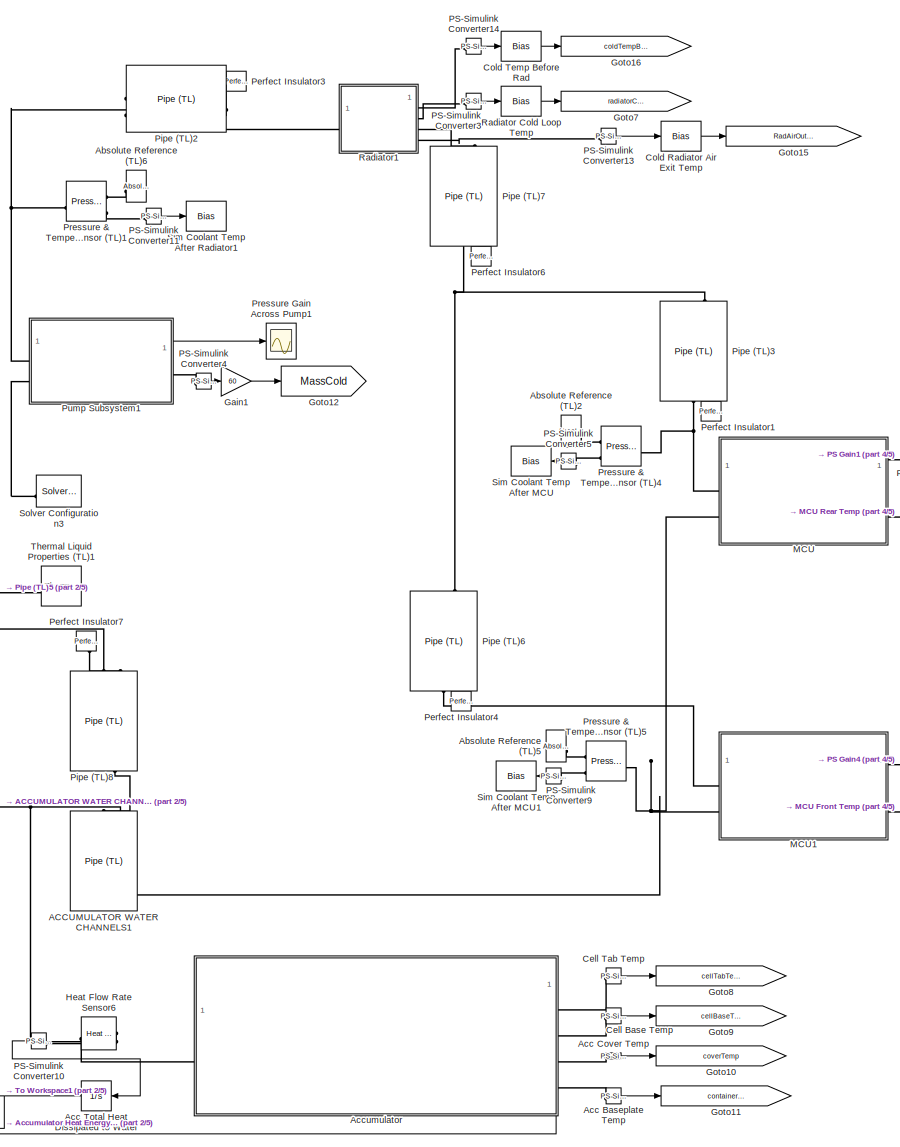
[diagram: root canvas - part 1/5, middle right region]
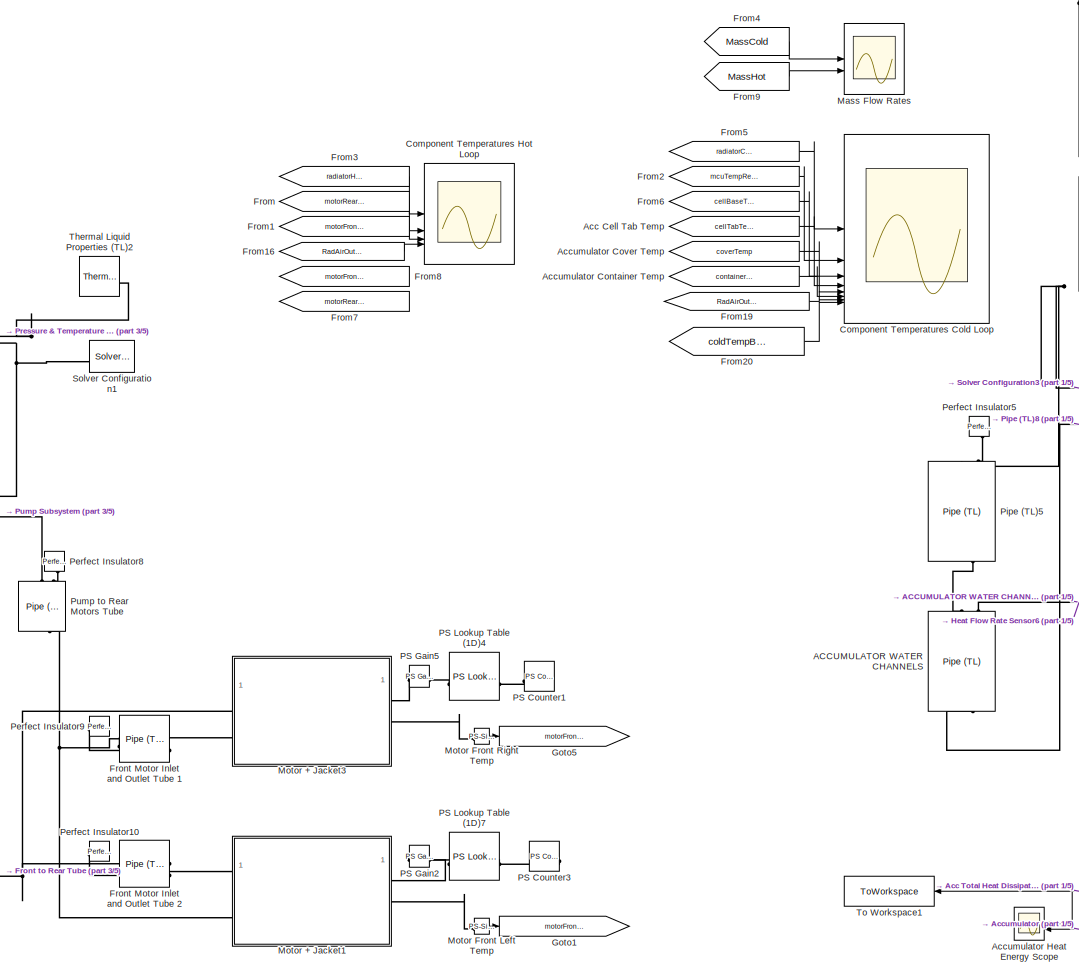
[diagram: root canvas - part 2/5, central region]
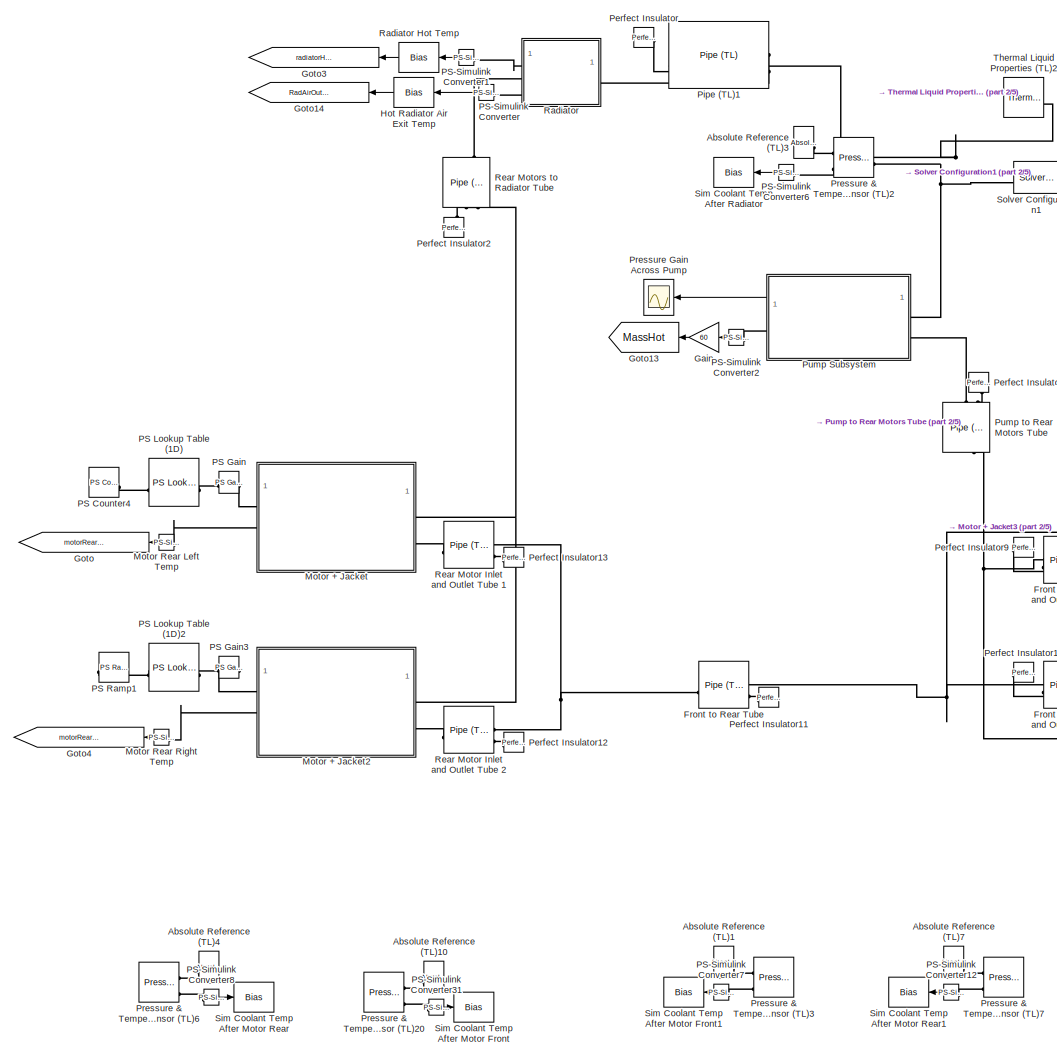
[diagram: root canvas - part 3/5, middle left region]
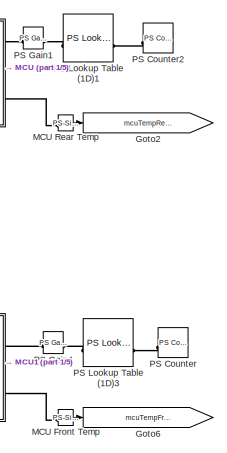
[diagram: root canvas - part 4/5, middle right region]
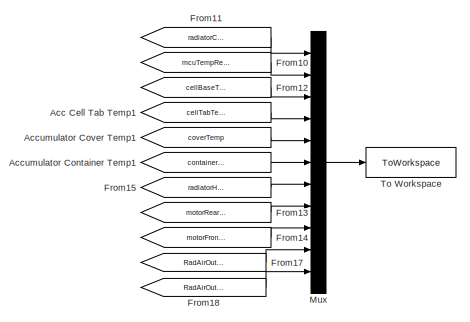
[diagram: root canvas - part 5/5, bottom center region]
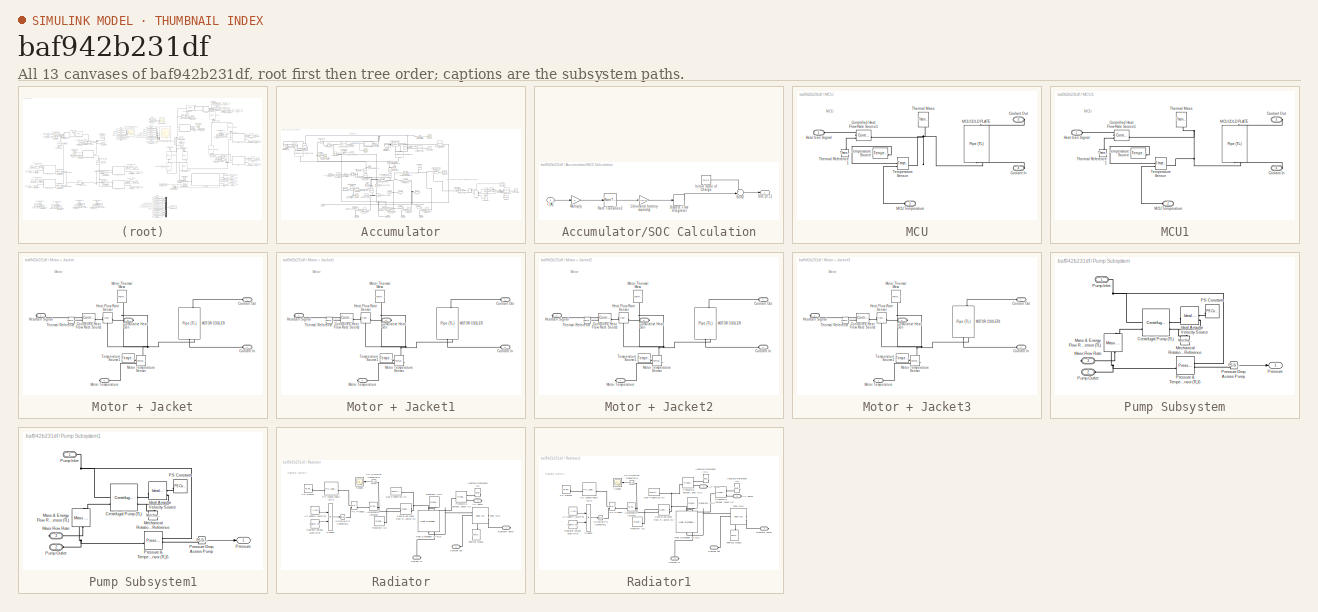
[diagram: thumbnail index - all 13 canvases of the model, root first then tree order]
MODEL slx_baf942b231df
KIND model
CONFIG AbsTol = auto
CONFIG EnableMultiTasking = off
CONFIG FixedStep = auto
CONFIG MaxStep = auto
CONFIG MinStep = auto
CONFIG RelTol = 1e-4
CONFIG SampleTimeConstraint = Unconstrained
CONFIG SolverName = VariableStepAuto
CONFIG StartTime = 0.0
CONFIG StopTime = timeEnd
BLOCK [Reference] ACCUMULATOR WATER CHANNELS  REF=SimscapeFluids_lib/Thermal Liquid/Pipes & Fittings/Pipe (TL)
  NameLocation = left
  SourceBlock = SimscapeFluids_lib/Thermal Liquid/Pipes & Fittings/Pipe (TL)
  SourceType = Pipe (TL)
BLOCK [Reference] ACCUMULATOR WATER CHANNELS1  REF=SimscapeFluids_lib/Thermal Liquid/Pipes & Fittings/Pipe (TL)
  NameLocation = left
  SourceBlock = SimscapeFluids_lib/Thermal Liquid/Pipes & Fittings/Pipe (TL)
  SourceType = Pipe (TL)
BLOCK [Reference] Absolute Reference (TL)1  REF=fl_lib/Thermal Liquid/Elements/Absolute Reference
(TL)
  Commented = on
  NameLocation = top
  SourceBlock = fl_lib/Thermal Liquid/Elements/Absolute Reference\n(TL)
  SourceType = Absolute Reference\n(TL)
BLOCK [Reference] Absolute Reference (TL)10  REF=fl_lib/Thermal Liquid/Elements/Absolute Reference
(TL)
  Commented = on
  NameLocation = top
  SourceBlock = fl_lib/Thermal Liquid/Elements/Absolute Reference\n(TL)
  SourceType = Absolute Reference\n(TL)
BLOCK [Reference] Absolute Reference (TL)2  REF=fl_lib/Thermal Liquid/Elements/Absolute Reference
(TL)
  Commented = on
  NameLocation = top
  SourceBlock = fl_lib/Thermal Liquid/Elements/Absolute Reference\n(TL)
  SourceType = Absolute Reference\n(TL)
BLOCK [Reference] Absolute Reference (TL)3  REF=fl_lib/Thermal Liquid/Elements/Absolute Reference
(TL)
  Commented = on
  NameLocation = top
  SourceBlock = fl_lib/Thermal Liquid/Elements/Absolute Reference\n(TL)
  SourceType = Absolute Reference\n(TL)
BLOCK [Reference] Absolute Reference (TL)4  REF=fl_lib/Thermal Liquid/Elements/Absolute Reference
(TL)
  Commented = on
  NameLocation = top
  SourceBlock = fl_lib/Thermal Liquid/Elements/Absolute Reference\n(TL)
  SourceType = Absolute Reference\n(TL)
BLOCK [Reference] Absolute Reference (TL)5  REF=fl_lib/Thermal Liquid/Elements/Absolute Reference
(TL)
  Commented = on
  NameLocation = top
  SourceBlock = fl_lib/Thermal Liquid/Elements/Absolute Reference\n(TL)
  SourceType = Absolute Reference\n(TL)
BLOCK [Reference] Absolute Reference (TL)6  REF=fl_lib/Thermal Liquid/Elements/Absolute Reference
(TL)
  NameLocation = top
  SourceBlock = fl_lib/Thermal Liquid/Elements/Absolute Reference\n(TL)
  SourceType = Absolute Reference\n(TL)
BLOCK [Reference] Absolute Reference (TL)7  REF=fl_lib/Thermal Liquid/Elements/Absolute Reference
(TL)
  Commented = on
  NameLocation = top
  SourceBlock = fl_lib/Thermal Liquid/Elements/Absolute Reference\n(TL)
  SourceType = Absolute Reference\n(TL)
BLOCK [Reference] Acc Baseplate Temp  REF=nesl_utility/PS-Simulink
Converter
  SourceBlock = nesl_utility/PS-Simulink\nConverter
  SourceType = PS-Simulink\nConverter
BLOCK [From] Acc Cell Tab Temp
  GotoTag = cellTabTemp
  NameLocation = left
BLOCK [From] Acc Cell Tab Temp1
  GotoTag = cellTabTemp
  NameLocation = left
BLOCK [Reference] Acc Cover Temp  REF=nesl_utility/PS-Simulink
Converter
  SourceBlock = nesl_utility/PS-Simulink\nConverter
  SourceType = PS-Simulink\nConverter
BLOCK [Integrator] Acc Total Heat Dissipated to Water
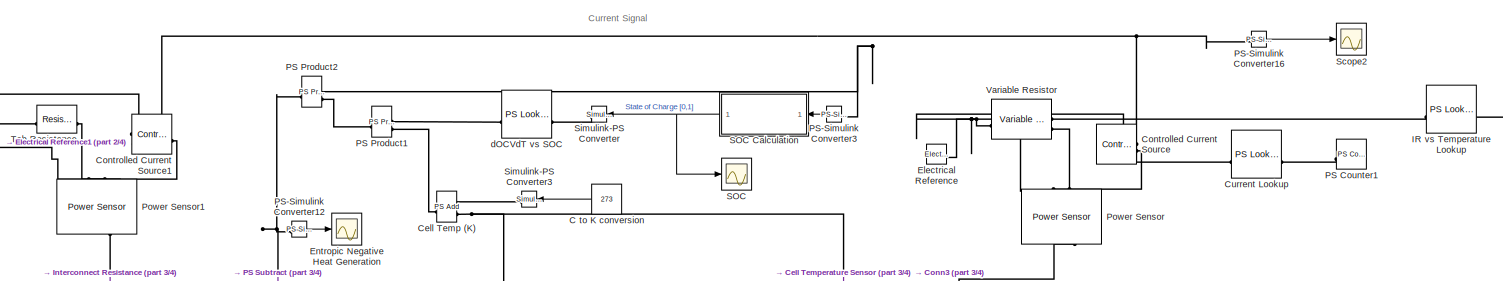
[diagram: Accumulator - part 1/4, top center region]
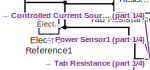
[diagram: Accumulator - part 2/4, top left region]
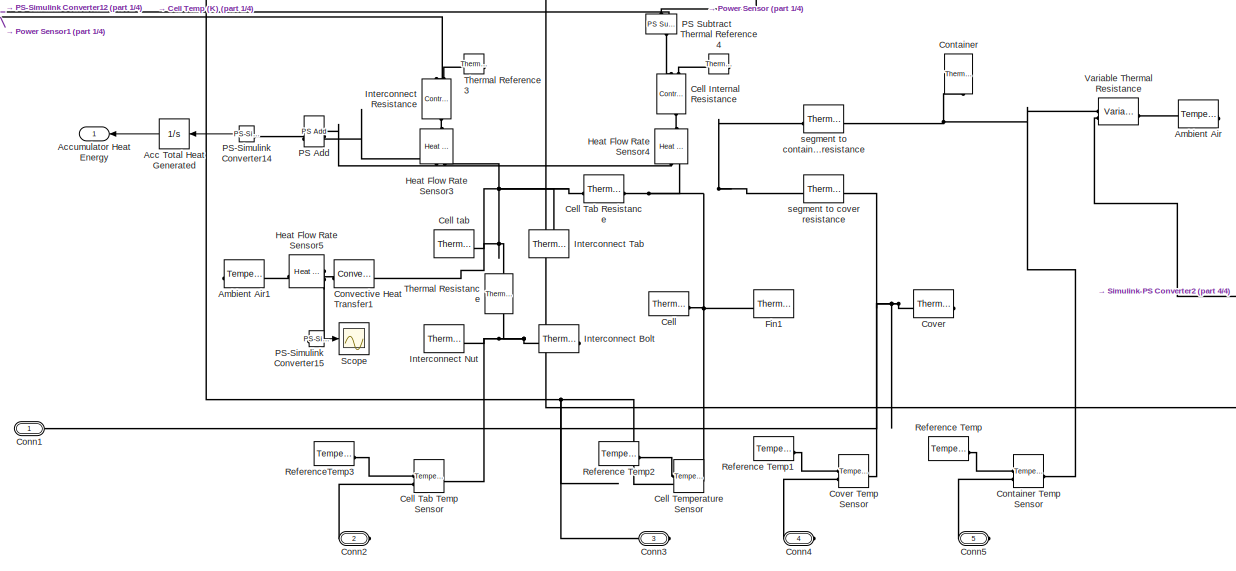
[diagram: Accumulator - part 3/4, central region]
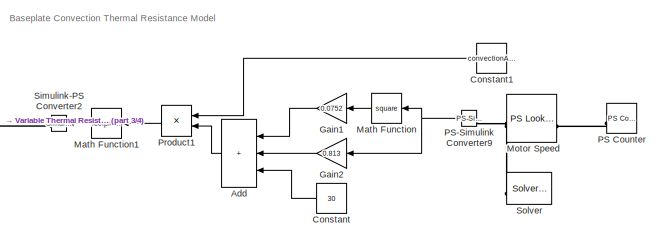
[diagram: Accumulator - part 4/4, middle right region]
BLOCK [SubSystem] Accumulator
  NameLocation = top
  PortSchema = {"entries":[{"content":{"sides":[{"content":{"connectorIds":["LConn1"]},"type":"ConnectorPlacement.EquallySpacedRectSide","uuid":"2f90a673-8eaf-40f3-a9d6-1dfd0c75426b"},{"content":{"connectorIds":["RConn1","RConn2","RConn3","RConn4"],"side":"RIGHT"},"type":"ConnectorPlacement.EquallySpacedRectSide","uuid":"ded79b49-27b5-4ece-bb5e-a836f3b6075f"},{"content":{"connectorIds":[],"side":"TOP"},"type":"C...<+422ch>
BLOCK [From] Accumulator Container Temp
  GotoTag = containerTemp
  NameLocation = left
BLOCK [From] Accumulator Container Temp1
  GotoTag = containerTemp
  NameLocation = left
BLOCK [From] Accumulator Cover Temp
  GotoTag = coverTemp
  NameLocation = left
BLOCK [From] Accumulator Cover Temp1
  GotoTag = coverTemp
  NameLocation = left
BLOCK [Scope] Accumulator Heat Energy Scope
  Floating = off
  NumInputPorts = 2
  ScopeSpecificationString = Simulink.scopes.TimeScopeBlockCfg('CurrentConfiguration', extmgr.ConfigurationSet(extmgr.Configuration('Core','General UI',true),extmgr.Configuration('Core','Source UI',true),extmgr.Configuration('Sources','WiredSimulink',true,'DataLoggingVariableName','ScopeData5'),extmgr.Configuration('Visuals','Time Domain',true,'SerializedDisplays',{struct('MinYLimReal','-275036.63675','MaxYLimReal','508292.58...<+1878ch>
BLOCK [Reference] Accumulator/ Fin1  REF=fl_lib/Thermal/Thermal Elements/Thermal Mass
  NameLocation = top
  SourceBlock = fl_lib/Thermal/Thermal Elements/Thermal Mass
  SourceType = Thermal Mass
BLOCK [Integrator] Accumulator/Acc Total Heat Generated
  NameLocation = top
BLOCK [Outport] Accumulator/Accumulator Heat Energy
  NameLocation = top
BLOCK [Sum] Accumulator/Add
  Commented = on
  IconShape = rectangular
  Inputs = +++
BLOCK [Reference] Accumulator/Ambient Air  REF=fl_lib/Thermal/Thermal Sources/Temperature Source
  Commented = on
  NameLocation = top
  SourceBlock = fl_lib/Thermal/Thermal Sources/Temperature Source
  SourceType = Temperature Source
BLOCK [Reference] Accumulator/Ambient Air1  REF=fl_lib/Thermal/Thermal Sources/Temperature Source
  NameLocation = top
  SourceBlock = fl_lib/Thermal/Thermal Sources/Temperature Source
  SourceType = Temperature Source
BLOCK [Constant] Accumulator/C to K conversion
  Value = 273
BLOCK [Reference] Accumulator/Cell   REF=fl_lib/Thermal/Thermal Elements/Thermal Mass
  SourceBlock = fl_lib/Thermal/Thermal Elements/Thermal Mass
  SourceType = Thermal Mass
BLOCK [Reference] Accumulator/Cell Internal Resistance  REF=fl_lib/Thermal/Thermal Sources/Controlled Heat Flow
Rate Source
  NameLocation = right
  SourceBlock = fl_lib/Thermal/Thermal Sources/Controlled Heat Flow\nRate Source
  SourceType = Controlled Heat Flow\nRate Source
BLOCK [Reference] Accumulator/Cell Tab Resistance  REF=fl_lib/Thermal/Thermal Elements/Thermal Resistance
  SourceBlock = fl_lib/Thermal/Thermal Elements/Thermal Resistance
  SourceType = Thermal Resistance
BLOCK [Reference] Accumulator/Cell Tab Temp Sensor  REF=fl_lib/Thermal/Thermal Sensors/Temperature Sensor
  SourceBlock = fl_lib/Thermal/Thermal Sensors/Temperature Sensor
  SourceType = Temperature Sensor
BLOCK [Reference] Accumulator/Cell Temp (K)  REF=fl_lib/Physical Signals/Functions/PS Add
  SourceBlock = fl_lib/Physical Signals/Functions/PS Add
  SourceType = PS Add
BLOCK [Reference] Accumulator/Cell Temperature Sensor  REF=fl_lib/Thermal/Thermal Sensors/Temperature Sensor
  SourceBlock = fl_lib/Thermal/Thermal Sensors/Temperature Sensor
  SourceType = Temperature Sensor
BLOCK [Reference] Accumulator/Cell tab  REF=fl_lib/Thermal/Thermal Elements/Thermal Mass
  Commented = on
  SourceBlock = fl_lib/Thermal/Thermal Elements/Thermal Mass
  SourceType = Thermal Mass
BLOCK [PMIOPort] Accumulator/Conn1
  Side = Left
BLOCK [PMIOPort] Accumulator/Conn2
  NameLocation = top
  Port = 2
  Side = Right
BLOCK [PMIOPort] Accumulator/Conn3
  NameLocation = top
  Port = 3
  Side = Right
BLOCK [PMIOPort] Accumulator/Conn4
  NameLocation = top
  Port = 4
  Side = Right
BLOCK [PMIOPort] Accumulator/Conn5
  NameLocation = top
  Port = 5
  Side = Right
BLOCK [Constant] Accumulator/Constant
  Commented = on
  Value = 30
BLOCK [Constant] Accumulator/Constant1
  Commented = on
  Value = convectionArea
BLOCK [Reference] Accumulator/Container  REF=fl_lib/Thermal/Thermal Elements/Thermal Mass
  NameLocation = left
  SourceBlock = fl_lib/Thermal/Thermal Elements/Thermal Mass
  SourceType = Thermal Mass
BLOCK [Reference] Accumulator/Container Temp Sensor  REF=fl_lib/Thermal/Thermal Sensors/Temperature Sensor
  SourceBlock = fl_lib/Thermal/Thermal Sensors/Temperature Sensor
  SourceType = Temperature Sensor
BLOCK [Reference] Accumulator/Controlled Current Source  REF=fl_lib/Electrical/Electrical Sources/Controlled Current
Source
  NameLocation = top
  SourceBlock = fl_lib/Electrical/Electrical Sources/Controlled Current\nSource
  SourceType = Controlled Current\nSource
BLOCK [Reference] Accumulator/Controlled Current Source1  REF=fl_lib/Electrical/Electrical Sources/Controlled Current
Source
  NameLocation = top
  SourceBlock = fl_lib/Electrical/Electrical Sources/Controlled Current\nSource
  SourceType = Controlled Current\nSource
BLOCK [Reference] Accumulator/Convective Heat Transfer1  REF=fl_lib/Thermal/Thermal Elements/Convective Heat
Transfer
  SourceBlock = fl_lib/Thermal/Thermal Elements/Convective Heat\nTransfer
  SourceType = Convective Heat\nTransfer
BLOCK [Reference] Accumulator/Cover  REF=fl_lib/Thermal/Thermal Elements/Thermal Mass
  NameLocation = top
  SourceBlock = fl_lib/Thermal/Thermal Elements/Thermal Mass
  SourceType = Thermal Mass
BLOCK [Reference] Accumulator/Cover Temp Sensor  REF=fl_lib/Thermal/Thermal Sensors/Temperature Sensor
  SourceBlock = fl_lib/Thermal/Thermal Sensors/Temperature Sensor
  SourceType = Temperature Sensor
BLOCK [Reference] Accumulator/Current Lookup  REF=fl_lib/Physical Signals/Lookup Tables/PS Lookup Table (1D)
  SourceBlock = fl_lib/Physical Signals/Lookup Tables/PS Lookup Table (1D)
  SourceType = PS Lookup Table (1D)
BLOCK [Reference] Accumulator/Electrical Reference  REF=fl_lib/Electrical/Electrical Elements/Electrical Reference
  SourceBlock = fl_lib/Electrical/Electrical Elements/Electrical Reference
  SourceType = Electrical Reference
BLOCK [Reference] Accumulator/Electrical Reference1  REF=fl_lib/Electrical/Electrical Elements/Electrical Reference
  SourceBlock = fl_lib/Electrical/Electrical Elements/Electrical Reference
  SourceType = Electrical Reference
BLOCK [Scope] Accumulator/Entropic Negative Heat Generation
  Floating = off
  NumInputPorts = 1
  ScopeSpecificationString = Simulink.scopes.TimeScopeBlockCfg('CurrentConfiguration', extmgr.ConfigurationSet(extmgr.Configuration('Core','General UI',true),extmgr.Configuration('Core','Source UI',true),extmgr.Configuration('Sources','WiredSimulink',true,'DataLoggingVariableName','ScopeData1'),extmgr.Configuration('Visuals','Time Domain',true,'SerializedDisplays',{struct('MinYLimReal','-38.80135','MaxYLimReal','39.6377','YLa...<+1425ch>
BLOCK [Gain] Accumulator/Gain1
  Commented = on
  Gain = 0.0752
BLOCK [Gain] Accumulator/Gain2
  Commented = on
  Gain = 0.813
BLOCK [Reference] Accumulator/Heat Flow Rate Sensor3  REF=fl_lib/Thermal/Thermal Sensors/Heat Flow Rate
Sensor
  NameLocation = left
  SourceBlock = fl_lib/Thermal/Thermal Sensors/Heat Flow Rate\nSensor
  SourceType = Heat Flow Rate\nSensor
BLOCK [Reference] Accumulator/Heat Flow Rate Sensor4  REF=fl_lib/Thermal/Thermal Sensors/Heat Flow Rate
Sensor
  NameLocation = left
  SourceBlock = fl_lib/Thermal/Thermal Sensors/Heat Flow Rate\nSensor
  SourceType = Heat Flow Rate\nSensor
BLOCK [Reference] Accumulator/Heat Flow Rate Sensor5  REF=fl_lib/Thermal/Thermal Sensors/Heat Flow Rate
Sensor
  NameLocation = top
  SourceBlock = fl_lib/Thermal/Thermal Sensors/Heat Flow Rate\nSensor
  SourceType = Heat Flow Rate\nSensor
BLOCK [Reference] Accumulator/IR vs Temperature Lookup  REF=fl_lib/Physical Signals/Lookup Tables/PS Lookup Table (1D)
  SourceBlock = fl_lib/Physical Signals/Lookup Tables/PS Lookup Table (1D)
  SourceType = PS Lookup Table (1D)
BLOCK [Reference] Accumulator/Interconnect Bolt  REF=fl_lib/Thermal/Thermal Elements/Thermal Mass
  NameLocation = top
  SourceBlock = fl_lib/Thermal/Thermal Elements/Thermal Mass
  SourceType = Thermal Mass
BLOCK [Reference] Accumulator/Interconnect Nut  REF=fl_lib/Thermal/Thermal Elements/Thermal Mass
  SourceBlock = fl_lib/Thermal/Thermal Elements/Thermal Mass
  SourceType = Thermal Mass
BLOCK [Reference] Accumulator/Interconnect Resistance  REF=fl_lib/Thermal/Thermal Sources/Controlled Heat Flow
Rate Source
  NameLocation = right
  SourceBlock = fl_lib/Thermal/Thermal Sources/Controlled Heat Flow\nRate Source
  SourceType = Controlled Heat Flow\nRate Source
BLOCK [Reference] Accumulator/Interconnect Tab  REF=fl_lib/Thermal/Thermal Elements/Thermal Mass
  NameLocation = top
  SourceBlock = fl_lib/Thermal/Thermal Elements/Thermal Mass
  SourceType = Thermal Mass
BLOCK [Math] Accumulator/Math Function
  Commented = on
  Operator = square
BLOCK [Math] Accumulator/Math Function1
  Commented = on
  Operator = reciprocal
BLOCK [Reference] Accumulator/Motor Speed  REF=fl_lib/Physical Signals/Lookup Tables/PS Lookup Table (1D)
  Commented = on
  SourceBlock = fl_lib/Physical Signals/Lookup Tables/PS Lookup Table (1D)
  SourceType = PS Lookup Table (1D)
BLOCK [Reference] Accumulator/PS Add  REF=fl_lib/Physical Signals/Functions/PS Add
  NameLocation = top
  SourceBlock = fl_lib/Physical Signals/Functions/PS Add
  SourceType = PS Add
BLOCK [Reference] Accumulator/PS Counter  REF=fl_lib/Physical Signals/Sources/PS Counter
  Commented = on
  SourceBlock = fl_lib/Physical Signals/Sources/PS Counter
  SourceType = PS Counter
BLOCK [Reference] Accumulator/PS Counter1  REF=fl_lib/Physical Signals/Sources/PS Counter
  SourceBlock = fl_lib/Physical Signals/Sources/PS Counter
  SourceType = PS Counter
BLOCK [Reference] Accumulator/PS Product1  REF=fl_lib/Physical Signals/Functions/PS Product
  SourceBlock = fl_lib/Physical Signals/Functions/PS Product
  SourceType = PS Product
BLOCK [Reference] Accumulator/PS Product2  REF=fl_lib/Physical Signals/Functions/PS Product
  SourceBlock = fl_lib/Physical Signals/Functions/PS Product
  SourceType = PS Product
BLOCK [Reference] Accumulator/PS Subtract  REF=fl_lib/Physical Signals/Functions/PS Subtract
  NameLocation = left
  SourceBlock = fl_lib/Physical Signals/Functions/PS Subtract
  SourceType = PS Subtract
BLOCK [Reference] Accumulator/PS-Simulink Converter12  REF=nesl_utility/PS-Simulink
Converter
  SourceBlock = nesl_utility/PS-Simulink\nConverter
  SourceType = PS-Simulink\nConverter
BLOCK [Reference] Accumulator/PS-Simulink Converter14  REF=nesl_utility/PS-Simulink
Converter
  NameLocation = top
  SourceBlock = nesl_utility/PS-Simulink\nConverter
  SourceType = PS-Simulink\nConverter
BLOCK [Reference] Accumulator/PS-Simulink Converter15  REF=nesl_utility/PS-Simulink
Converter
  NameLocation = top
  SourceBlock = nesl_utility/PS-Simulink\nConverter
  SourceType = PS-Simulink\nConverter
BLOCK [Reference] Accumulator/PS-Simulink Converter16  REF=nesl_utility/PS-Simulink
Converter
  SourceBlock = nesl_utility/PS-Simulink\nConverter
  SourceType = PS-Simulink\nConverter
BLOCK [Reference] Accumulator/PS-Simulink Converter3  REF=nesl_utility/PS-Simulink
Converter
  SourceBlock = nesl_utility/PS-Simulink\nConverter
  SourceType = PS-Simulink\nConverter
BLOCK [Reference] Accumulator/PS-Simulink Converter9  REF=nesl_utility/PS-Simulink
Converter
  Commented = on
  SourceBlock = nesl_utility/PS-Simulink\nConverter
  SourceType = PS-Simulink\nConverter
BLOCK [Reference] Accumulator/Power Sensor  REF=ee_lib/Sensors &
Transducers/Power Sensor
  NameLocation = left
  SourceBlock = ee_lib/Sensors &\nTransducers/Power Sensor
  SourceType = Power Sensor
BLOCK [Reference] Accumulator/Power Sensor1  REF=ee_lib/Sensors &
Transducers/Power Sensor
  NameLocation = left
  SourceBlock = ee_lib/Sensors &\nTransducers/Power Sensor
  SourceType = Power Sensor
BLOCK [Product] Accumulator/Product1
  Commented = on
BLOCK [Reference] Accumulator/Reference Temp  REF=fl_lib/Thermal/Thermal Sources/Temperature Source
  SourceBlock = fl_lib/Thermal/Thermal Sources/Temperature Source
  SourceType = Temperature Source
BLOCK [Reference] Accumulator/Reference Temp1  REF=fl_lib/Thermal/Thermal Sources/Temperature Source
  SourceBlock = fl_lib/Thermal/Thermal Sources/Temperature Source
  SourceType = Temperature Source
BLOCK [Reference] Accumulator/Reference Temp2  REF=fl_lib/Thermal/Thermal Sources/Temperature Source
  SourceBlock = fl_lib/Thermal/Thermal Sources/Temperature Source
  SourceType = Temperature Source
BLOCK [Reference] Accumulator/ReferenceTemp3  REF=fl_lib/Thermal/Thermal Sources/Temperature Source
  SourceBlock = fl_lib/Thermal/Thermal Sources/Temperature Source
  SourceType = Temperature Source
BLOCK [Scope] Accumulator/SOC
  Floating = off
  NumInputPorts = 1
  ScopeSpecificationString = Simulink.scopes.TimeScopeBlockCfg('CurrentConfiguration', extmgr.ConfigurationSet(extmgr.Configuration('Core','General UI',true),extmgr.Configuration('Core','Source UI',true),extmgr.Configuration('Sources','WiredSimulink',true,'DataLoggingVariableName','ScopeData2'),extmgr.Configuration('Visuals','Time Domain',true,'SerializedDisplays',{struct('MinYLimReal','-0.03515','MaxYLimReal','1.11679','YLab...<+1457ch>
BLOCK [SubSystem] Accumulator/SOC Calculation
BLOCK [Gain] Accumulator/SOC Calculation/1//(nominal battery capacity)
  Gain = 1/(AH*3600)
BLOCK [DiscreteIntegrator] Accumulator/SOC Calculation/Discrete-Time Integrator
  ICPrevOutput = DiscIntNeverNeededParam
  ICPrevScaledInput = DiscIntNeverNeededParam
  InitialConditionSetting = Auto
  SampleTime = -1
BLOCK [Inport] Accumulator/SOC Calculation/I [A]
BLOCK [Constant] Accumulator/SOC Calculation/Initial State of Charge
  Value = SOC0
BLOCK [Gain] Accumulator/SOC Calculation/Multiply
BLOCK [RateTransition] Accumulator/SOC Calculation/Rate Transition2
BLOCK [Outport] Accumulator/SOC Calculation/SOC [0,1]
  VectorParamsAs1DForOutWhenUnconnected = off
BLOCK [Sum] Accumulator/SOC Calculation/Sum2
  Inputs = +-
BLOCK [Scope] Accumulator/Scope
  Floating = off
  NameLocation = top
  NumInputPorts = 1
  ScopeSpecificationString = Simulink.scopes.TimeScopeBlockCfg('CurrentConfiguration', extmgr.ConfigurationSet(extmgr.Configuration('Core','General UI',true),extmgr.Configuration('Core','Source UI',true),extmgr.Configuration('Sources','WiredSimulink',true,'DataLoggingVariableName','ScopeData3'),extmgr.Configuration('Visuals','Time Domain',true,'SerializedDisplays',{struct('MinYLimReal','-13.97983','MaxYLimReal','125.81846','Y...<+1446ch>
BLOCK [Scope] Accumulator/Scope2
  Floating = off
  NumInputPorts = 1
  ScopeSpecificationString = Simulink.scopes.TimeScopeBlockCfg('CurrentConfiguration', extmgr.ConfigurationSet(extmgr.Configuration('Core','General UI',true),extmgr.Configuration('Core','Source UI',true),extmgr.Configuration('Sources','WiredSimulink',true,'DataLoggingVariableName','ScopeData4'),extmgr.Configuration('Visuals','Time Domain',true,'SerializedDisplays',{struct('MinYLimReal','-166.16382','MaxYLimReal','196.49789','...<+1395ch>
BLOCK [Reference] Accumulator/Simulink-PS Converter  REF=nesl_utility/Simulink-PS
Converter
  SourceBlock = nesl_utility/Simulink-PS\nConverter
  SourceType = Simulink-PS\nConverter
BLOCK [Reference] Accumulator/Simulink-PS Converter2  REF=nesl_utility/Simulink-PS
Converter
  Commented = on
  SourceBlock = nesl_utility/Simulink-PS\nConverter
  SourceType = Simulink-PS\nConverter
BLOCK [Reference] Accumulator/Simulink-PS Converter3  REF=nesl_utility/Simulink-PS
Converter
  SourceBlock = nesl_utility/Simulink-PS\nConverter
  SourceType = Simulink-PS\nConverter
BLOCK [Reference] Accumulator/Solver  REF=nesl_utility/Solver
Configuration
  Commented = on
  SourceBlock = nesl_utility/Solver\nConfiguration
  SourceType = Solver\nConfiguration
BLOCK [Reference] Accumulator/Tab Resistance  REF=fl_lib/Electrical/Electrical Elements/Resistor
  SourceBlock = fl_lib/Electrical/Electrical Elements/Resistor
  SourceType = Resistor
BLOCK [Reference] Accumulator/Thermal Reference3  REF=fl_lib/Thermal/Thermal Elements/Thermal Reference
  NameLocation = top
  SourceBlock = fl_lib/Thermal/Thermal Elements/Thermal Reference
  SourceType = Thermal Reference
BLOCK [Reference] Accumulator/Thermal Reference4  REF=fl_lib/Thermal/Thermal Elements/Thermal Reference
  NameLocation = top
  SourceBlock = fl_lib/Thermal/Thermal Elements/Thermal Reference
  SourceType = Thermal Reference
BLOCK [Reference] Accumulator/Thermal Resistance  REF=fl_lib/Thermal/Thermal Elements/Thermal Resistance
  NameLocation = left
  SourceBlock = fl_lib/Thermal/Thermal Elements/Thermal Resistance
  SourceType = Thermal Resistance
BLOCK [Reference] Accumulator/Variable Resistor  REF=fl_lib/Electrical/Electrical Elements/Variable Resistor
  SourceBlock = fl_lib/Electrical/Electrical Elements/Variable Resistor
  SourceType = Variable Resistor
BLOCK [Reference] Accumulator/Variable Thermal Resistance  REF=fl_lib/Thermal/Thermal Elements/Variable Thermal
Resistance
  Commented = on
  SourceBlock = fl_lib/Thermal/Thermal Elements/Variable Thermal\nResistance
  SourceType = Variable Thermal\nResistance
BLOCK [Reference] Accumulator/dOCVdT vs SOC  REF=fl_lib/Physical Signals/Lookup Tables/PS Lookup Table (1D)
  NameLocation = left
  SourceBlock = fl_lib/Physical Signals/Lookup Tables/PS Lookup Table (1D)
  SourceType = PS Lookup Table (1D)
BLOCK [Reference] Accumulator/segment to container resistance  REF=fl_lib/Thermal/Thermal Elements/Thermal Resistance
  SourceBlock = fl_lib/Thermal/Thermal Elements/Thermal Resistance
  SourceType = Thermal Resistance
BLOCK [Reference] Accumulator/segment to cover resistance  REF=fl_lib/Thermal/Thermal Elements/Thermal Resistance
  SourceBlock = fl_lib/Thermal/Thermal Elements/Thermal Resistance
  SourceType = Thermal Resistance
BLOCK [Reference] Cell Base Temp  REF=nesl_utility/PS-Simulink
Converter
  SourceBlock = nesl_utility/PS-Simulink\nConverter
  SourceType = PS-Simulink\nConverter
BLOCK [Reference] Cell Tab Temp  REF=nesl_utility/PS-Simulink
Converter
  SourceBlock = nesl_utility/PS-Simulink\nConverter
  SourceType = PS-Simulink\nConverter
BLOCK [Bias] Cold Radiator Air Exit Temp
  Bias = -273
  SaturateOnIntegerOverflow = off
BLOCK [Bias] Cold Temp Before Rad
  Bias = -273
  SaturateOnIntegerOverflow = off
BLOCK [Scope] Component Temperatures Cold Loop
  Floating = off
  NameLocation = top
  NumInputPorts = 8
  ScopeSpecificationString = Simulink.scopes.TimeScopeBlockCfg('CurrentConfiguration', extmgr.ConfigurationSet(extmgr.Configuration('Core','General UI',true),extmgr.Configuration('Core','Source UI',true),extmgr.Configuration('Sources','WiredSimulink',true,'DataLoggingVariableName','ScopeData2'),extmgr.Configuration('Visuals','Time Domain',true,'SerializedDisplays',{struct('MinYLimReal','21.99104','MaxYLimReal','64.93994','YLa...<+2143ch>
BLOCK [Scope] Component Temperatures Hot Loop
  Floating = off
  NameLocation = top
  NumInputPorts = 4
  ScopeSpecificationString = Simulink.scopes.TimeScopeBlockCfg('CurrentConfiguration', extmgr.ConfigurationSet(extmgr.Configuration('Core','General UI',true),extmgr.Configuration('Core','Source UI',true),extmgr.Configuration('Sources','WiredSimulink',true,'DataLoggingVariableName','ScopeData1'),extmgr.Configuration('Visuals','Time Domain',true,'SerializedDisplays',{struct('MinYLimReal','17.4772','MaxYLimReal','107.3438','YLab...<+1975ch>
BLOCK [From] From
  GotoTag = motorRearLeftTemp
BLOCK [From] From1
  GotoTag = motorFrontLeftTemp
BLOCK [From] From10
  GotoTag = mcuTempRear
BLOCK [From] From11
  GotoTag = radiatorColdTemp
  NameLocation = left
BLOCK [From] From12
  GotoTag = cellBaseTemp
BLOCK [From] From13
  GotoTag = motorRearLeftTemp
BLOCK [From] From14
  GotoTag = motorFrontLeftTemp
BLOCK [From] From15
  GotoTag = radiatorHotTemp
BLOCK [From] From16
  GotoTag = RadAirOutTempHotLoop
BLOCK [From] From17
  GotoTag = RadAirOutTempHotLoop
BLOCK [From] From18
  GotoTag = RadAirOutTempColdLoop
BLOCK [From] From19
  GotoTag = RadAirOutTempColdLoop
BLOCK [From] From2
  GotoTag = mcuTempRear
BLOCK [From] From20
  GotoTag = coldTempBeforeRad
BLOCK [From] From3
  GotoTag = radiatorHotTemp
BLOCK [From] From4
  GotoTag = MassCold
BLOCK [From] From5
  GotoTag = radiatorColdTemp
  NameLocation = left
BLOCK [From] From6
  GotoTag = cellBaseTemp
BLOCK [From] From7
  Commented = on
  GotoTag = motorRearRightTemp
BLOCK [From] From8
  Commented = on
  GotoTag = motorFrontRightTemp
BLOCK [From] From9
  GotoTag = MassHot
BLOCK [Reference] Front Motor Inlet and Outlet Tube 1  REF=fl_lib/Thermal Liquid/Elements/Pipe (TL)
  SourceBlock = fl_lib/Thermal Liquid/Elements/Pipe (TL)
  SourceType = Pipe (TL)
BLOCK [Reference] Front Motor Inlet and Outlet Tube 2  REF=fl_lib/Thermal Liquid/Elements/Pipe (TL)
  SourceBlock = fl_lib/Thermal Liquid/Elements/Pipe (TL)
  SourceType = Pipe (TL)
BLOCK [Reference] Front to Rear Tube  REF=fl_lib/Thermal Liquid/Elements/Pipe (TL)
  NameLocation = top
  SourceBlock = fl_lib/Thermal Liquid/Elements/Pipe (TL)
  SourceType = Pipe (TL)
BLOCK [Gain] Gain
  Gain = 60
BLOCK [Gain] Gain1
  Gain = 60
BLOCK [Goto] Goto
  GotoTag = motorRearLeftTemp
BLOCK [Goto] Goto1
  GotoTag = motorFrontLeftTemp
  NameLocation = top
BLOCK [Goto] Goto10
  GotoTag = coverTemp
BLOCK [Goto] Goto11
  GotoTag = containerTemp
BLOCK [Goto] Goto12
  GotoTag = MassCold
BLOCK [Goto] Goto13
  GotoTag = MassHot
BLOCK [Goto] Goto14
  GotoTag = RadAirOutTempHotLoop
BLOCK [Goto] Goto15
  GotoTag = RadAirOutTempColdLoop
BLOCK [Goto] Goto16
  GotoTag = coldTempBeforeRad
BLOCK [Goto] Goto2
  GotoTag = mcuTempRear
BLOCK [Goto] Goto3
  GotoTag = radiatorHotTemp
BLOCK [Goto] Goto4
  GotoTag = motorRearRightTemp
  NameLocation = top
BLOCK [Goto] Goto5
  GotoTag = motorFrontRightTemp
BLOCK [Goto] Goto6
  GotoTag = mcuTempFront
BLOCK [Goto] Goto7
  GotoTag = radiatorColdTemp
BLOCK [Goto] Goto8
  GotoTag = cellTabTemp
BLOCK [Goto] Goto9
  GotoTag = cellBaseTemp
BLOCK [Reference] Heat Flow Rate Sensor6  REF=fl_lib/Thermal/Thermal Sensors/Heat Flow Rate
Sensor
  NameLocation = top
  SourceBlock = fl_lib/Thermal/Thermal Sensors/Heat Flow Rate\nSensor
  SourceType = Heat Flow Rate\nSensor
BLOCK [Bias] Hot Radiator Air Exit Temp
  Bias = -273
  SaturateOnIntegerOverflow = off
BLOCK [SubSystem] MCU
BLOCK [Reference] MCU Front Temp  REF=nesl_utility/PS-Simulink
Converter
  SourceBlock = nesl_utility/PS-Simulink\nConverter
  SourceType = PS-Simulink\nConverter
BLOCK [Reference] MCU Rear Temp  REF=nesl_utility/PS-Simulink
Converter
  SourceBlock = nesl_utility/PS-Simulink\nConverter
  SourceType = PS-Simulink\nConverter
BLOCK [Reference] MCU/Controlled Heat Flow Rate Source1  REF=fl_lib/Thermal/Thermal Sources/Controlled Heat Flow
Rate Source
  SourceBlock = fl_lib/Thermal/Thermal Sources/Controlled Heat Flow\nRate Source
  SourceType = Controlled Heat Flow\nRate Source
BLOCK [PMIOPort] MCU/Coolant In
  Port = 4
  Side = Right
BLOCK [PMIOPort] MCU/Coolant Out
  Port = 3
  Side = Right
BLOCK [PMIOPort] MCU/Heat Gen Signal
  Side = Left
BLOCK [Reference] MCU/MCU COLD PLATE  REF=SimscapeFluids_lib/Thermal Liquid/Pipes & Fittings/Pipe (TL)
  NameLocation = left
  SourceBlock = SimscapeFluids_lib/Thermal Liquid/Pipes & Fittings/Pipe (TL)
  SourceType = Pipe (TL)
BLOCK [PMIOPort] MCU/MCU Temperature
  Port = 2
  Side = Left
BLOCK [Reference] MCU/Temperature Sensor  REF=fl_lib/Thermal/Thermal Sensors/Temperature Sensor
  SourceBlock = fl_lib/Thermal/Thermal Sensors/Temperature Sensor
  SourceType = Temperature Sensor
BLOCK [Reference] MCU/Temperature Source  REF=fl_lib/Thermal/Thermal Sources/Temperature Source
  SourceBlock = fl_lib/Thermal/Thermal Sources/Temperature Source
  SourceType = Temperature Source
BLOCK [Reference] MCU/Thermal Mass  REF=fl_lib/Thermal/Thermal Elements/Thermal Mass
  NameLocation = left
  SourceBlock = fl_lib/Thermal/Thermal Elements/Thermal Mass
  SourceType = Thermal Mass
BLOCK [Reference] MCU/Thermal Reference1  REF=fl_lib/Thermal/Thermal Elements/Thermal Reference
  NameLocation = right
  SourceBlock = fl_lib/Thermal/Thermal Elements/Thermal Reference
  SourceType = Thermal Reference
BLOCK [SubSystem] MCU1
BLOCK [Reference] MCU1/Controlled Heat Flow Rate Source1  REF=fl_lib/Thermal/Thermal Sources/Controlled Heat Flow
Rate Source
  SourceBlock = fl_lib/Thermal/Thermal Sources/Controlled Heat Flow\nRate Source
  SourceType = Controlled Heat Flow\nRate Source
BLOCK [PMIOPort] MCU1/Coolant In
  Port = 4
  Side = Right
BLOCK [PMIOPort] MCU1/Coolant Out
  Port = 3
  Side = Right
BLOCK [PMIOPort] MCU1/Heat Gen Signal
  Side = Left
BLOCK [Reference] MCU1/MCU COLD PLATE  REF=SimscapeFluids_lib/Thermal Liquid/Pipes & Fittings/Pipe (TL)
  NameLocation = left
  SourceBlock = SimscapeFluids_lib/Thermal Liquid/Pipes & Fittings/Pipe (TL)
  SourceType = Pipe (TL)
BLOCK [PMIOPort] MCU1/MCU Temperature
  Port = 2
  Side = Left
BLOCK [Reference] MCU1/Temperature Sensor  REF=fl_lib/Thermal/Thermal Sensors/Temperature Sensor
  SourceBlock = fl_lib/Thermal/Thermal Sensors/Temperature Sensor
  SourceType = Temperature Sensor
BLOCK [Reference] MCU1/Temperature Source  REF=fl_lib/Thermal/Thermal Sources/Temperature Source
  SourceBlock = fl_lib/Thermal/Thermal Sources/Temperature Source
  SourceType = Temperature Source
BLOCK [Reference] MCU1/Thermal Mass  REF=fl_lib/Thermal/Thermal Elements/Thermal Mass
  NameLocation = left
  SourceBlock = fl_lib/Thermal/Thermal Elements/Thermal Mass
  SourceType = Thermal Mass
BLOCK [Reference] MCU1/Thermal Reference1  REF=fl_lib/Thermal/Thermal Elements/Thermal Reference
  NameLocation = right
  SourceBlock = fl_lib/Thermal/Thermal Elements/Thermal Reference
  SourceType = Thermal Reference
BLOCK [Scope] Mass Flow Rates
  Floating = off
  NameLocation = top
  NumInputPorts = 2
  ScopeSpecificationString = Simulink.scopes.TimeScopeBlockCfg('CurrentConfiguration', extmgr.ConfigurationSet(extmgr.Configuration('Core','General UI',true),extmgr.Configuration('Core','Source UI',true),extmgr.Configuration('Sources','WiredSimulink',true,'DataLoggingVariableName','ScopeData1'),extmgr.Configuration('Visuals','Time Domain',true,'SerializedDisplays',{struct('MinYLimReal','1.11936','MaxYLimReal','9.68245','YLabe...<+1436ch>
BLOCK [SubSystem] Motor + Jacket
BLOCK [Reference] Motor + Jacket/Controlled Heat Flow Rate Source  REF=fl_lib/Thermal/Thermal Sources/Controlled Heat Flow
Rate Source
  SourceBlock = fl_lib/Thermal/Thermal Sources/Controlled Heat Flow\nRate Source
  SourceType = Controlled Heat Flow\nRate Source
BLOCK [PMIOPort] Motor + Jacket/Coolant In
  NameLocation = top
  Port = 2
  Side = Left
BLOCK [PMIOPort] Motor + Jacket/Coolant Out
  Side = Left
BLOCK [PMIOPort] Motor + Jacket/Cumulative Heat Gen
  Port = 5
  Side = Right
BLOCK [Reference] Motor + Jacket/Heat Flow Rate Sensor  REF=fl_lib/Thermal/Thermal Sensors/Heat Flow Rate
Sensor
  SourceBlock = fl_lib/Thermal/Thermal Sensors/Heat Flow Rate\nSensor
  SourceType = Heat Flow Rate\nSensor
BLOCK [PMIOPort] Motor + Jacket/HeatGen Signal
  Port = 3
  Side = Right
BLOCK [Reference] Motor + Jacket/MOTOR COOLER  REF=SimscapeFluids_lib/Thermal Liquid/Pipes & Fittings/Pipe (TL)
  NameLocation = right
  SourceBlock = SimscapeFluids_lib/Thermal Liquid/Pipes & Fittings/Pipe (TL)
  SourceType = Pipe (TL)
BLOCK [PMIOPort] Motor + Jacket/Motor Temperature
  Port = 4
  Side = Right
BLOCK [Reference] Motor + Jacket/Motor Temperature Sensor  REF=fl_lib/Thermal/Thermal Sensors/Temperature Sensor
  SourceBlock = fl_lib/Thermal/Thermal Sensors/Temperature Sensor
  SourceType = Temperature Sensor
BLOCK [Reference] Motor + Jacket/Motor Thermal Mass  REF=fl_lib/Thermal/Thermal Elements/Thermal Mass
  NameLocation = left
  SourceBlock = fl_lib/Thermal/Thermal Elements/Thermal Mass
  SourceType = Thermal Mass
BLOCK [Reference] Motor + Jacket/Temperature Source1  REF=fl_lib/Thermal/Thermal Sources/Temperature Source
  SourceBlock = fl_lib/Thermal/Thermal Sources/Temperature Source
  SourceType = Temperature Source
BLOCK [Reference] Motor + Jacket/Thermal Reference  REF=fl_lib/Thermal/Thermal Elements/Thermal Reference
  SourceBlock = fl_lib/Thermal/Thermal Elements/Thermal Reference
  SourceType = Thermal Reference
BLOCK [SubSystem] Motor + Jacket1
  NameLocation = top
BLOCK [Reference] Motor + Jacket1/Controlled Heat Flow Rate Source  REF=fl_lib/Thermal/Thermal Sources/Controlled Heat Flow
Rate Source
  SourceBlock = fl_lib/Thermal/Thermal Sources/Controlled Heat Flow\nRate Source
  SourceType = Controlled Heat Flow\nRate Source
BLOCK [PMIOPort] Motor + Jacket1/Coolant In
  NameLocation = top
  Port = 2
  Side = Left
BLOCK [PMIOPort] Motor + Jacket1/Coolant Out
  Side = Left
BLOCK [PMIOPort] Motor + Jacket1/Cumulative Heat Gen
  Port = 5
  Side = Right
BLOCK [Reference] Motor + Jacket1/Heat Flow Rate Sensor  REF=fl_lib/Thermal/Thermal Sensors/Heat Flow Rate
Sensor
  SourceBlock = fl_lib/Thermal/Thermal Sensors/Heat Flow Rate\nSensor
  SourceType = Heat Flow Rate\nSensor
BLOCK [PMIOPort] Motor + Jacket1/HeatGen Signal
  Port = 3
  Side = Right
BLOCK [Reference] Motor + Jacket1/MOTOR COOLER  REF=SimscapeFluids_lib/Thermal Liquid/Pipes & Fittings/Pipe (TL)
  NameLocation = right
  SourceBlock = SimscapeFluids_lib/Thermal Liquid/Pipes & Fittings/Pipe (TL)
  SourceType = Pipe (TL)
BLOCK [PMIOPort] Motor + Jacket1/Motor Temperature
  Port = 4
  Side = Right
BLOCK [Reference] Motor + Jacket1/Motor Temperature Sensor  REF=fl_lib/Thermal/Thermal Sensors/Temperature Sensor
  SourceBlock = fl_lib/Thermal/Thermal Sensors/Temperature Sensor
  SourceType = Temperature Sensor
BLOCK [Reference] Motor + Jacket1/Motor Thermal Mass  REF=fl_lib/Thermal/Thermal Elements/Thermal Mass
  NameLocation = left
  SourceBlock = fl_lib/Thermal/Thermal Elements/Thermal Mass
  SourceType = Thermal Mass
BLOCK [Reference] Motor + Jacket1/Temperature Source1  REF=fl_lib/Thermal/Thermal Sources/Temperature Source
  SourceBlock = fl_lib/Thermal/Thermal Sources/Temperature Source
  SourceType = Temperature Source
BLOCK [Reference] Motor + Jacket1/Thermal Reference  REF=fl_lib/Thermal/Thermal Elements/Thermal Reference
  SourceBlock = fl_lib/Thermal/Thermal Elements/Thermal Reference
  SourceType = Thermal Reference
BLOCK [SubSystem] Motor + Jacket2
  NameLocation = top
BLOCK [Reference] Motor + Jacket2/Controlled Heat Flow Rate Source  REF=fl_lib/Thermal/Thermal Sources/Controlled Heat Flow
Rate Source
  SourceBlock = fl_lib/Thermal/Thermal Sources/Controlled Heat Flow\nRate Source
  SourceType = Controlled Heat Flow\nRate Source
BLOCK [PMIOPort] Motor + Jacket2/Coolant In
  NameLocation = top
  Port = 2
  Side = Left
BLOCK [PMIOPort] Motor + Jacket2/Coolant Out
  Side = Left
BLOCK [PMIOPort] Motor + Jacket2/Cumulative Heat Gen
  Port = 5
  Side = Right
BLOCK [Reference] Motor + Jacket2/Heat Flow Rate Sensor  REF=fl_lib/Thermal/Thermal Sensors/Heat Flow Rate
Sensor
  SourceBlock = fl_lib/Thermal/Thermal Sensors/Heat Flow Rate\nSensor
  SourceType = Heat Flow Rate\nSensor
BLOCK [PMIOPort] Motor + Jacket2/HeatGen Signal
  Port = 3
  Side = Right
BLOCK [Reference] Motor + Jacket2/MOTOR COOLER  REF=SimscapeFluids_lib/Thermal Liquid/Pipes & Fittings/Pipe (TL)
  NameLocation = right
  SourceBlock = SimscapeFluids_lib/Thermal Liquid/Pipes & Fittings/Pipe (TL)
  SourceType = Pipe (TL)
BLOCK [PMIOPort] Motor + Jacket2/Motor Temperature
  Port = 4
  Side = Right
BLOCK [Reference] Motor + Jacket2/Motor Temperature Sensor  REF=fl_lib/Thermal/Thermal Sensors/Temperature Sensor
  SourceBlock = fl_lib/Thermal/Thermal Sensors/Temperature Sensor
  SourceType = Temperature Sensor
BLOCK [Reference] Motor + Jacket2/Motor Thermal Mass  REF=fl_lib/Thermal/Thermal Elements/Thermal Mass
  NameLocation = left
  SourceBlock = fl_lib/Thermal/Thermal Elements/Thermal Mass
  SourceType = Thermal Mass
BLOCK [Reference] Motor + Jacket2/Temperature Source1  REF=fl_lib/Thermal/Thermal Sources/Temperature Source
  SourceBlock = fl_lib/Thermal/Thermal Sources/Temperature Source
  SourceType = Temperature Source
BLOCK [Reference] Motor + Jacket2/Thermal Reference  REF=fl_lib/Thermal/Thermal Elements/Thermal Reference
  SourceBlock = fl_lib/Thermal/Thermal Elements/Thermal Reference
  SourceType = Thermal Reference
BLOCK [SubSystem] Motor + Jacket3
BLOCK [Reference] Motor + Jacket3/Controlled Heat Flow Rate Source  REF=fl_lib/Thermal/Thermal Sources/Controlled Heat Flow
Rate Source
  SourceBlock = fl_lib/Thermal/Thermal Sources/Controlled Heat Flow\nRate Source
  SourceType = Controlled Heat Flow\nRate Source
BLOCK [PMIOPort] Motor + Jacket3/Coolant In
  NameLocation = top
  Port = 2
  Side = Left
BLOCK [PMIOPort] Motor + Jacket3/Coolant Out
  Side = Left
BLOCK [PMIOPort] Motor + Jacket3/Cumulative Heat Gen
  Port = 5
  Side = Right
BLOCK [Reference] Motor + Jacket3/Heat Flow Rate Sensor  REF=fl_lib/Thermal/Thermal Sensors/Heat Flow Rate
Sensor
  SourceBlock = fl_lib/Thermal/Thermal Sensors/Heat Flow Rate\nSensor
  SourceType = Heat Flow Rate\nSensor
BLOCK [PMIOPort] Motor + Jacket3/HeatGen Signal
  Port = 3
  Side = Right
BLOCK [Reference] Motor + Jacket3/MOTOR COOLER1  REF=SimscapeFluids_lib/Thermal Liquid/Pipes & Fittings/Pipe (TL)
  NameLocation = right
  SourceBlock = SimscapeFluids_lib/Thermal Liquid/Pipes & Fittings/Pipe (TL)
  SourceType = Pipe (TL)
BLOCK [PMIOPort] Motor + Jacket3/Motor Temperature
  Port = 4
  Side = Right
BLOCK [Reference] Motor + Jacket3/Motor Temperature Sensor  REF=fl_lib/Thermal/Thermal Sensors/Temperature Sensor
  SourceBlock = fl_lib/Thermal/Thermal Sensors/Temperature Sensor
  SourceType = Temperature Sensor
BLOCK [Reference] Motor + Jacket3/Motor Thermal Mass  REF=fl_lib/Thermal/Thermal Elements/Thermal Mass
  NameLocation = left
  SourceBlock = fl_lib/Thermal/Thermal Elements/Thermal Mass
  SourceType = Thermal Mass
BLOCK [Reference] Motor + Jacket3/Temperature Source1  REF=fl_lib/Thermal/Thermal Sources/Temperature Source
  SourceBlock = fl_lib/Thermal/Thermal Sources/Temperature Source
  SourceType = Temperature Source
BLOCK [Reference] Motor + Jacket3/Thermal Reference  REF=fl_lib/Thermal/Thermal Elements/Thermal Reference
  SourceBlock = fl_lib/Thermal/Thermal Elements/Thermal Reference
  SourceType = Thermal Reference
BLOCK [Reference] Motor Front Left Temp  REF=nesl_utility/PS-Simulink
Converter
  SourceBlock = nesl_utility/PS-Simulink\nConverter
  SourceType = PS-Simulink\nConverter
BLOCK [Reference] Motor Front Right Temp  REF=nesl_utility/PS-Simulink
Converter
  SourceBlock = nesl_utility/PS-Simulink\nConverter
  SourceType = PS-Simulink\nConverter
BLOCK [Reference] Motor Rear Left Temp  REF=nesl_utility/PS-Simulink
Converter
  SourceBlock = nesl_utility/PS-Simulink\nConverter
  SourceType = PS-Simulink\nConverter
BLOCK [Reference] Motor Rear Right Temp  REF=nesl_utility/PS-Simulink
Converter
  SourceBlock = nesl_utility/PS-Simulink\nConverter
  SourceType = PS-Simulink\nConverter
BLOCK [Mux] Mux
  DisplayOption = bar
  Inputs = 11
BLOCK [Reference] PS Counter  REF=fl_lib/Physical Signals/Sources/PS Counter
  SourceBlock = fl_lib/Physical Signals/Sources/PS Counter
  SourceType = PS Counter
BLOCK [Reference] PS Counter1  REF=fl_lib/Physical Signals/Sources/PS Counter
  SourceBlock = fl_lib/Physical Signals/Sources/PS Counter
  SourceType = PS Counter
BLOCK [Reference] PS Counter2  REF=fl_lib/Physical Signals/Sources/PS Counter
  SourceBlock = fl_lib/Physical Signals/Sources/PS Counter
  SourceType = PS Counter
BLOCK [Reference] PS Counter3  REF=fl_lib/Physical Signals/Sources/PS Counter
  NameLocation = top
  SourceBlock = fl_lib/Physical Signals/Sources/PS Counter
  SourceType = PS Counter
BLOCK [Reference] PS Counter4  REF=fl_lib/Physical Signals/Sources/PS Counter
  SourceBlock = fl_lib/Physical Signals/Sources/PS Counter
  SourceType = PS Counter
BLOCK [Reference] PS Gain  REF=fl_lib/Physical Signals/Functions/PS Gain
  SourceBlock = fl_lib/Physical Signals/Functions/PS Gain
  SourceType = PS Gain
BLOCK [Reference] PS Gain1  REF=fl_lib/Physical Signals/Functions/PS Gain
  SourceBlock = fl_lib/Physical Signals/Functions/PS Gain
  SourceType = PS Gain
BLOCK [Reference] PS Gain2  REF=fl_lib/Physical Signals/Functions/PS Gain
  NameLocation = top
  SourceBlock = fl_lib/Physical Signals/Functions/PS Gain
  SourceType = PS Gain
BLOCK [Reference] PS Gain3  REF=fl_lib/Physical Signals/Functions/PS Gain
  NameLocation = top
  SourceBlock = fl_lib/Physical Signals/Functions/PS Gain
  SourceType = PS Gain
BLOCK [Reference] PS Gain4  REF=fl_lib/Physical Signals/Functions/PS Gain
  SourceBlock = fl_lib/Physical Signals/Functions/PS Gain
  SourceType = PS Gain
BLOCK [Reference] PS Gain5  REF=fl_lib/Physical Signals/Functions/PS Gain
  SourceBlock = fl_lib/Physical Signals/Functions/PS Gain
  SourceType = PS Gain
BLOCK [Reference] PS Lookup Table (1D)  REF=fl_lib/Physical Signals/Lookup Tables/PS Lookup Table (1D)
  SourceBlock = fl_lib/Physical Signals/Lookup Tables/PS Lookup Table (1D)
  SourceType = PS Lookup Table (1D)
BLOCK [Reference] PS Lookup Table (1D)1  REF=fl_lib/Physical Signals/Lookup Tables/PS Lookup Table (1D)
  SourceBlock = fl_lib/Physical Signals/Lookup Tables/PS Lookup Table (1D)
  SourceType = PS Lookup Table (1D)
BLOCK [Reference] PS Lookup Table (1D)2  REF=fl_lib/Physical Signals/Lookup Tables/PS Lookup Table (1D)
  NameLocation = top
  SourceBlock = fl_lib/Physical Signals/Lookup Tables/PS Lookup Table (1D)
  SourceType = PS Lookup Table (1D)
BLOCK [Reference] PS Lookup Table (1D)3  REF=fl_lib/Physical Signals/Lookup Tables/PS Lookup Table (1D)
  SourceBlock = fl_lib/Physical Signals/Lookup Tables/PS Lookup Table (1D)
  SourceType = PS Lookup Table (1D)
BLOCK [Reference] PS Lookup Table (1D)4  REF=fl_lib/Physical Signals/Lookup Tables/PS Lookup Table (1D)
  SourceBlock = fl_lib/Physical Signals/Lookup Tables/PS Lookup Table (1D)
  SourceType = PS Lookup Table (1D)
BLOCK [Reference] PS Lookup Table (1D)7  REF=fl_lib/Physical Signals/Lookup Tables/PS Lookup Table (1D)
  NameLocation = top
  SourceBlock = fl_lib/Physical Signals/Lookup Tables/PS Lookup Table (1D)
  SourceType = PS Lookup Table (1D)
BLOCK [Reference] PS Ramp1  REF=fl_lib/Physical Signals/Sources/PS Ramp
  NameLocation = top
  SourceBlock = fl_lib/Physical Signals/Sources/PS Ramp
  SourceType = PS Ramp
BLOCK [Reference] PS-Simulink Converter  REF=nesl_utility/PS-Simulink
Converter
  SourceBlock = nesl_utility/PS-Simulink\nConverter
  SourceType = PS-Simulink\nConverter
BLOCK [Reference] PS-Simulink Converter1  REF=nesl_utility/PS-Simulink
Converter
  SourceBlock = nesl_utility/PS-Simulink\nConverter
  SourceType = PS-Simulink\nConverter
BLOCK [Reference] PS-Simulink Converter10  REF=nesl_utility/PS-Simulink
Converter
  NameLocation = top
  SourceBlock = nesl_utility/PS-Simulink\nConverter
  SourceType = PS-Simulink\nConverter
BLOCK [Reference] PS-Simulink Converter11  REF=nesl_utility/PS-Simulink
Converter
  SourceBlock = nesl_utility/PS-Simulink\nConverter
  SourceType = PS-Simulink\nConverter
BLOCK [Reference] PS-Simulink Converter12  REF=nesl_utility/PS-Simulink
Converter
  Commented = on
  SourceBlock = nesl_utility/PS-Simulink\nConverter
  SourceType = PS-Simulink\nConverter
BLOCK [Reference] PS-Simulink Converter13  REF=nesl_utility/PS-Simulink
Converter
  SourceBlock = nesl_utility/PS-Simulink\nConverter
  SourceType = PS-Simulink\nConverter
BLOCK [Reference] PS-Simulink Converter14  REF=nesl_utility/PS-Simulink
Converter
  SourceBlock = nesl_utility/PS-Simulink\nConverter
  SourceType = PS-Simulink\nConverter
BLOCK [Reference] PS-Simulink Converter2  REF=nesl_utility/PS-Simulink
Converter
  SourceBlock = nesl_utility/PS-Simulink\nConverter
  SourceType = PS-Simulink\nConverter
BLOCK [Reference] PS-Simulink Converter3  REF=nesl_utility/PS-Simulink
Converter
  SourceBlock = nesl_utility/PS-Simulink\nConverter
  SourceType = PS-Simulink\nConverter
BLOCK [Reference] PS-Simulink Converter31  REF=nesl_utility/PS-Simulink
Converter
  Commented = on
  SourceBlock = nesl_utility/PS-Simulink\nConverter
  SourceType = PS-Simulink\nConverter
BLOCK [Reference] PS-Simulink Converter4  REF=nesl_utility/PS-Simulink
Converter
  SourceBlock = nesl_utility/PS-Simulink\nConverter
  SourceType = PS-Simulink\nConverter
BLOCK [Reference] PS-Simulink Converter5  REF=nesl_utility/PS-Simulink
Converter
  Commented = on
  SourceBlock = nesl_utility/PS-Simulink\nConverter
  SourceType = PS-Simulink\nConverter
BLOCK [Reference] PS-Simulink Converter6  REF=nesl_utility/PS-Simulink
Converter
  Commented = on
  SourceBlock = nesl_utility/PS-Simulink\nConverter
  SourceType = PS-Simulink\nConverter
BLOCK [Reference] PS-Simulink Converter7  REF=nesl_utility/PS-Simulink
Converter
  Commented = on
  SourceBlock = nesl_utility/PS-Simulink\nConverter
  SourceType = PS-Simulink\nConverter
BLOCK [Reference] PS-Simulink Converter8  REF=nesl_utility/PS-Simulink
Converter
  Commented = on
  SourceBlock = nesl_utility/PS-Simulink\nConverter
  SourceType = PS-Simulink\nConverter
BLOCK [Reference] PS-Simulink Converter9  REF=nesl_utility/PS-Simulink
Converter
  Commented = on
  SourceBlock = nesl_utility/PS-Simulink\nConverter
  SourceType = PS-Simulink\nConverter
BLOCK [Reference] Perfect Insulator  REF=fl_lib/Thermal/Thermal Elements/Perfect Insulator
  SourceBlock = fl_lib/Thermal/Thermal Elements/Perfect Insulator
  SourceType = Perfect Insulator
BLOCK [Reference] Perfect Insulator1  REF=fl_lib/Thermal/Thermal Elements/Perfect Insulator
  NameLocation = right
  SourceBlock = fl_lib/Thermal/Thermal Elements/Perfect Insulator
  SourceType = Perfect Insulator
BLOCK [Reference] Perfect Insulator10  REF=fl_lib/Thermal/Thermal Elements/Perfect Insulator
  SourceBlock = fl_lib/Thermal/Thermal Elements/Perfect Insulator
  SourceType = Perfect Insulator
BLOCK [Reference] Perfect Insulator11  REF=fl_lib/Thermal/Thermal Elements/Perfect Insulator
  NameLocation = top
  SourceBlock = fl_lib/Thermal/Thermal Elements/Perfect Insulator
  SourceType = Perfect Insulator
BLOCK [Reference] Perfect Insulator12  REF=fl_lib/Thermal/Thermal Elements/Perfect Insulator
  NameLocation = top
  SourceBlock = fl_lib/Thermal/Thermal Elements/Perfect Insulator
  SourceType = Perfect Insulator
BLOCK [Reference] Perfect Insulator13  REF=fl_lib/Thermal/Thermal Elements/Perfect Insulator
  NameLocation = top
  SourceBlock = fl_lib/Thermal/Thermal Elements/Perfect Insulator
  SourceType = Perfect Insulator
BLOCK [Reference] Perfect Insulator2  REF=fl_lib/Thermal/Thermal Elements/Perfect Insulator
  NameLocation = right
  SourceBlock = fl_lib/Thermal/Thermal Elements/Perfect Insulator
  SourceType = Perfect Insulator
BLOCK [Reference] Perfect Insulator3  REF=fl_lib/Thermal/Thermal Elements/Perfect Insulator
  SourceBlock = fl_lib/Thermal/Thermal Elements/Perfect Insulator
  SourceType = Perfect Insulator
BLOCK [Reference] Perfect Insulator4  REF=fl_lib/Thermal/Thermal Elements/Perfect Insulator
  NameLocation = right
  SourceBlock = fl_lib/Thermal/Thermal Elements/Perfect Insulator
  SourceType = Perfect Insulator
BLOCK [Reference] Perfect Insulator5  REF=fl_lib/Thermal/Thermal Elements/Perfect Insulator
  NameLocation = left
  SourceBlock = fl_lib/Thermal/Thermal Elements/Perfect Insulator
  SourceType = Perfect Insulator
BLOCK [Reference] Perfect Insulator6  REF=fl_lib/Thermal/Thermal Elements/Perfect Insulator
  NameLocation = right
  SourceBlock = fl_lib/Thermal/Thermal Elements/Perfect Insulator
  SourceType = Perfect Insulator
BLOCK [Reference] Perfect Insulator7  REF=fl_lib/Thermal/Thermal Elements/Perfect Insulator
  NameLocation = left
  SourceBlock = fl_lib/Thermal/Thermal Elements/Perfect Insulator
  SourceType = Perfect Insulator
BLOCK [Reference] Perfect Insulator8  REF=fl_lib/Thermal/Thermal Elements/Perfect Insulator
  NameLocation = left
  SourceBlock = fl_lib/Thermal/Thermal Elements/Perfect Insulator
  SourceType = Perfect Insulator
BLOCK [Reference] Perfect Insulator9  REF=fl_lib/Thermal/Thermal Elements/Perfect Insulator
  SourceBlock = fl_lib/Thermal/Thermal Elements/Perfect Insulator
  SourceType = Perfect Insulator
BLOCK [Reference] Pipe (TL)1  REF=fl_lib/Thermal Liquid/Elements/Pipe (TL)
  NameLocation = top
  SourceBlock = fl_lib/Thermal Liquid/Elements/Pipe (TL)
  SourceType = Pipe (TL)
BLOCK [Reference] Pipe (TL)2  REF=fl_lib/Thermal Liquid/Elements/Pipe (TL)
  NameLocation = top
  SourceBlock = fl_lib/Thermal Liquid/Elements/Pipe (TL)
  SourceType = Pipe (TL)
BLOCK [Reference] Pipe (TL)3  REF=fl_lib/Thermal Liquid/Elements/Pipe (TL)
  NameLocation = right
  SourceBlock = fl_lib/Thermal Liquid/Elements/Pipe (TL)
  SourceType = Pipe (TL)
BLOCK [Reference] Pipe (TL)5  REF=fl_lib/Thermal Liquid/Elements/Pipe (TL)
  NameLocation = left
  SourceBlock = fl_lib/Thermal Liquid/Elements/Pipe (TL)
  SourceType = Pipe (TL)
BLOCK [Reference] Pipe (TL)6  REF=fl_lib/Thermal Liquid/Elements/Pipe (TL)
  NameLocation = right
  SourceBlock = fl_lib/Thermal Liquid/Elements/Pipe (TL)
  SourceType = Pipe (TL)
BLOCK [Reference] Pipe (TL)7  REF=fl_lib/Thermal Liquid/Elements/Pipe (TL)
  NameLocation = right
  SourceBlock = fl_lib/Thermal Liquid/Elements/Pipe (TL)
  SourceType = Pipe (TL)
BLOCK [Reference] Pipe (TL)8  REF=fl_lib/Thermal Liquid/Elements/Pipe (TL)
  NameLocation = left
  SourceBlock = fl_lib/Thermal Liquid/Elements/Pipe (TL)
  SourceType = Pipe (TL)
BLOCK [Reference] Pressure & Temperature Sensor (TL)1  REF=fl_lib/Thermal Liquid/Sensors/Pressure &
Temperature Sensor
(TL)
  SourceBlock = fl_lib/Thermal Liquid/Sensors/Pressure &\nTemperature Sensor\n(TL)
  SourceType = Pressure &\nTemperature Sensor\n(TL)
BLOCK [Reference] Pressure & Temperature Sensor (TL)2  REF=fl_lib/Thermal Liquid/Sensors/Pressure &
Temperature Sensor
(TL)
  Commented = on
  SourceBlock = fl_lib/Thermal Liquid/Sensors/Pressure &\nTemperature Sensor\n(TL)
  SourceType = Pressure &\nTemperature Sensor\n(TL)
BLOCK [Reference] Pressure & Temperature Sensor (TL)20  REF=fl_lib/Thermal Liquid/Sensors/Pressure &
Temperature Sensor
(TL)
  Commented = on
  SourceBlock = fl_lib/Thermal Liquid/Sensors/Pressure &\nTemperature Sensor\n(TL)
  SourceType = Pressure &\nTemperature Sensor\n(TL)
BLOCK [Reference] Pressure & Temperature Sensor (TL)3  REF=fl_lib/Thermal Liquid/Sensors/Pressure &
Temperature Sensor
(TL)
  Commented = on
  SourceBlock = fl_lib/Thermal Liquid/Sensors/Pressure &\nTemperature Sensor\n(TL)
  SourceType = Pressure &\nTemperature Sensor\n(TL)
BLOCK [Reference] Pressure & Temperature Sensor (TL)4  REF=fl_lib/Thermal Liquid/Sensors/Pressure &
Temperature Sensor
(TL)
  Commented = on
  SourceBlock = fl_lib/Thermal Liquid/Sensors/Pressure &\nTemperature Sensor\n(TL)
  SourceType = Pressure &\nTemperature Sensor\n(TL)
BLOCK [Reference] Pressure & Temperature Sensor (TL)5  REF=fl_lib/Thermal Liquid/Sensors/Pressure &
Temperature Sensor
(TL)
  Commented = on
  SourceBlock = fl_lib/Thermal Liquid/Sensors/Pressure &\nTemperature Sensor\n(TL)
  SourceType = Pressure &\nTemperature Sensor\n(TL)
BLOCK [Reference] Pressure & Temperature Sensor (TL)6  REF=fl_lib/Thermal Liquid/Sensors/Pressure &
Temperature Sensor
(TL)
  Commented = on
  SourceBlock = fl_lib/Thermal Liquid/Sensors/Pressure &\nTemperature Sensor\n(TL)
  SourceType = Pressure &\nTemperature Sensor\n(TL)
BLOCK [Reference] Pressure & Temperature Sensor (TL)7  REF=fl_lib/Thermal Liquid/Sensors/Pressure &
Temperature Sensor
(TL)
  Commented = on
  SourceBlock = fl_lib/Thermal Liquid/Sensors/Pressure &\nTemperature Sensor\n(TL)
  SourceType = Pressure &\nTemperature Sensor\n(TL)
BLOCK [Scope] Pressure Gain Across Pump
  Floating = off
  NameLocation = top
  NumInputPorts = 1
  ScopeSpecificationString = Simulink.scopes.TimeScopeBlockCfg('CurrentConfiguration', extmgr.ConfigurationSet(extmgr.Configuration('Core','General UI',true),extmgr.Configuration('Core','Source UI',true),extmgr.Configuration('Sources','WiredSimulink',true,'DataLoggingVariableName','ScopeData3'),extmgr.Configuration('Visuals','Time Domain',true,'SerializedDisplays',{struct('MinYLimReal','68396.22768','MaxYLimReal','71669.66038...<+1805ch>
BLOCK [Scope] Pressure Gain Across Pump1
  Floating = off
  NameLocation = top
  NumInputPorts = 1
  ScopeSpecificationString = Simulink.scopes.TimeScopeBlockCfg('CurrentConfiguration', extmgr.ConfigurationSet(extmgr.Configuration('Core','General UI',true),extmgr.Configuration('Core','Source UI',true),extmgr.Configuration('Sources','WiredSimulink',true,'DataLoggingVariableName','ScopeData9'),extmgr.Configuration('Visuals','Time Domain',true,'SerializedDisplays',{struct('MinYLimReal','68396.22768','MaxYLimReal','71669.66038...<+1805ch>
BLOCK [SubSystem] Pump Subsystem
BLOCK [Reference] Pump Subsystem/Centrifugal Pump (TL)  REF=SimscapeFluids_lib/Thermal Liquid/Pumps & Motors/Centrifugal Pump
(TL)
  SourceBlock = SimscapeFluids_lib/Thermal Liquid/Pumps & Motors/Centrifugal Pump\n(TL)
  SourceType = Centrifugal Pump\n(TL)
BLOCK [Reference] Pump Subsystem/Ideal Angular Velocity Source  REF=fl_lib/Mechanical/Mechanical Sources/Ideal Angular
Velocity Source
  SourceBlock = fl_lib/Mechanical/Mechanical Sources/Ideal Angular\nVelocity Source
  SourceType = Ideal Angular\nVelocity Source
BLOCK [Reference] Pump Subsystem/Mass & Energy Flow Rate Sensor (TL)  REF=fl_lib/Thermal Liquid/Sensors/Mass & Energy Flow
Rate Sensor (TL)
  NameLocation = left
  SourceBlock = fl_lib/Thermal Liquid/Sensors/Mass & Energy Flow\nRate Sensor (TL)
  SourceType = Mass & Energy Flow\nRate Sensor (TL)
BLOCK [PMIOPort] Pump Subsystem/Mass Flow Rate
  Port = 3
  Side = Right
BLOCK [Reference] Pump Subsystem/Mechanical Rotational Reference  REF=fl_lib/Mechanical/Rotational Elements/Mechanical
Rotational Reference
  NameLocation = right
  SourceBlock = fl_lib/Mechanical/Rotational Elements/Mechanical\nRotational Reference
  SourceType = Mechanical\nRotational Reference
BLOCK [Reference] Pump Subsystem/PS Constant  REF=fl_lib/Physical Signals/Sources/PS Constant
  SourceBlock = fl_lib/Physical Signals/Sources/PS Constant
  SourceType = PS Constant
BLOCK [Outport] Pump Subsystem/Pressure
BLOCK [Reference] Pump Subsystem/Pressure & Temperature Sensor (TL)5  REF=fl_lib/Thermal Liquid/Sensors/Pressure &
Temperature Sensor
(TL)
  SourceBlock = fl_lib/Thermal Liquid/Sensors/Pressure &\nTemperature Sensor\n(TL)
  SourceType = Pressure &\nTemperature Sensor\n(TL)
BLOCK [Reference] Pump Subsystem/Pressure Drop Across Pump  REF=nesl_utility/PS-Simulink
Converter
  SourceBlock = nesl_utility/PS-Simulink\nConverter
  SourceType = PS-Simulink\nConverter
BLOCK [PMIOPort] Pump Subsystem/Pump Inlet
  Side = Left
BLOCK [PMIOPort] Pump Subsystem/Pump Outlet
  Port = 2
  Side = Left
BLOCK [SubSystem] Pump Subsystem1
BLOCK [Reference] Pump Subsystem1/Centrifugal Pump (TL)  REF=SimscapeFluids_lib/Thermal Liquid/Pumps & Motors/Centrifugal Pump
(TL)
  SourceBlock = SimscapeFluids_lib/Thermal Liquid/Pumps & Motors/Centrifugal Pump\n(TL)
  SourceType = Centrifugal Pump\n(TL)
BLOCK [Reference] Pump Subsystem1/Ideal Angular Velocity Source  REF=fl_lib/Mechanical/Mechanical Sources/Ideal Angular
Velocity Source
  SourceBlock = fl_lib/Mechanical/Mechanical Sources/Ideal Angular\nVelocity Source
  SourceType = Ideal Angular\nVelocity Source
BLOCK [Reference] Pump Subsystem1/Mass & Energy Flow Rate Sensor (TL)  REF=fl_lib/Thermal Liquid/Sensors/Mass & Energy Flow
Rate Sensor (TL)
  NameLocation = left
  SourceBlock = fl_lib/Thermal Liquid/Sensors/Mass & Energy Flow\nRate Sensor (TL)
  SourceType = Mass & Energy Flow\nRate Sensor (TL)
BLOCK [PMIOPort] Pump Subsystem1/Mass Flow Rate
  Port = 3
  Side = Right
BLOCK [Reference] Pump Subsystem1/Mechanical Rotational Reference  REF=fl_lib/Mechanical/Rotational Elements/Mechanical
Rotational Reference
  NameLocation = right
  SourceBlock = fl_lib/Mechanical/Rotational Elements/Mechanical\nRotational Reference
  SourceType = Mechanical\nRotational Reference
BLOCK [Reference] Pump Subsystem1/PS Constant  REF=fl_lib/Physical Signals/Sources/PS Constant
  SourceBlock = fl_lib/Physical Signals/Sources/PS Constant
  SourceType = PS Constant
BLOCK [Outport] Pump Subsystem1/Pressure
BLOCK [Reference] Pump Subsystem1/Pressure & Temperature Sensor (TL)5  REF=fl_lib/Thermal Liquid/Sensors/Pressure &
Temperature Sensor
(TL)
  SourceBlock = fl_lib/Thermal Liquid/Sensors/Pressure &\nTemperature Sensor\n(TL)
  SourceType = Pressure &\nTemperature Sensor\n(TL)
BLOCK [Reference] Pump Subsystem1/Pressure Drop Across Pump  REF=nesl_utility/PS-Simulink
Converter
  SourceBlock = nesl_utility/PS-Simulink\nConverter
  SourceType = PS-Simulink\nConverter
BLOCK [PMIOPort] Pump Subsystem1/Pump Inlet
  Side = Left
BLOCK [PMIOPort] Pump Subsystem1/Pump Outlet
  Port = 2
  Side = Left
BLOCK [Reference] Pump to Rear Motors Tube  REF=fl_lib/Thermal Liquid/Elements/Pipe (TL)
  NameLocation = left
  SourceBlock = fl_lib/Thermal Liquid/Elements/Pipe (TL)
  SourceType = Pipe (TL)
BLOCK [SubSystem] Radiator
BLOCK [Bias] Radiator Cold Loop Temp
  Bias = -273
  SaturateOnIntegerOverflow = off
BLOCK [Bias] Radiator Hot Temp
  Bias = -273
  SaturateOnIntegerOverflow = off
BLOCK [Reference] Radiator/Absolute Reference (G)  REF=fl_lib/Gas/Elements/Absolute Reference
(G)
  NameLocation = top
  SourceBlock = fl_lib/Gas/Elements/Absolute Reference\n(G)
  SourceType = Absolute Reference\n(G)
BLOCK [Reference] Radiator/Aerodynamic Adjuster  REF=fl_lib/Physical Signals/Functions/PS Gain
  SourceBlock = fl_lib/Physical Signals/Functions/PS Gain
  SourceType = PS Gain
BLOCK [PMIOPort] Radiator/Air Temp
  Port = 4
  Side = Right
BLOCK [Constant] Radiator/Air density [kg//m^3]
  Value = 1.225
BLOCK [Reference] Radiator/Controlled Mass Flow Rate Source (G)  REF=fl_lib/Gas/Sources/Controlled Mass Flow
Rate Source (G)
  SourceBlock = fl_lib/Gas/Sources/Controlled Mass Flow\nRate Source (G)
  SourceType = Controlled Mass Flow\nRate Source (G)
BLOCK [PMIOPort] Radiator/Coolant In
  Port = 3
  Side = Right
BLOCK [PMIOPort] Radiator/Coolant out
  Port = 2
  Side = Left
BLOCK [Reference] Radiator/Gas Properties (G)  REF=fl_lib/Gas/Utilities/Gas Properties (G)
  SourceBlock = fl_lib/Gas/Utilities/Gas Properties (G)
  SourceType = Gas Properties (G)
BLOCK [Reference] Radiator/Heat Exchanger (G-TL)3  REF=SimscapeFluids_lib/Fluid Network
Interfaces/Heat Exchangers/Heat Exchanger
(G-TL)
  NameLocation = left
  SourceBlock = SimscapeFluids_lib/Fluid Network\nInterfaces/Heat Exchangers/Heat Exchanger\n(G-TL)
  SourceType = Heat Exchanger\n(G-TL)
BLOCK [Reference] Radiator/PS Lookup Table (1D)2  REF=fl_lib/Physical Signals/Lookup Tables/PS Lookup Table (1D)
  SourceBlock = fl_lib/Physical Signals/Lookup Tables/PS Lookup Table (1D)
  SourceType = PS Lookup Table (1D)
BLOCK [Reference] Radiator/PS Product  REF=fl_lib/Physical Signals/Functions/PS Product
  SourceBlock = fl_lib/Physical Signals/Functions/PS Product
  SourceType = PS Product
BLOCK [Reference] Radiator/PS Ramp1  REF=fl_lib/Physical Signals/Sources/PS Ramp
  SourceBlock = fl_lib/Physical Signals/Sources/PS Ramp
  SourceType = PS Ramp
BLOCK [Reference] Radiator/PS-Simulink Converter11  REF=nesl_utility/PS-Simulink
Converter
  NameLocation = top
  SourceBlock = nesl_utility/PS-Simulink\nConverter
  SourceType = PS-Simulink\nConverter
BLOCK [Reference] Radiator/Pressure & Temperature Sensor (G)  REF=fl_lib/Gas/Sensors/Pressure &
Temperature Sensor
(G)
  SourceBlock = fl_lib/Gas/Sensors/Pressure &\nTemperature Sensor\n(G)
  SourceType = Pressure &\nTemperature Sensor\n(G)
BLOCK [Product] Radiator/Product
BLOCK [PMIOPort] Radiator/Radiator Temp
  Side = Right
BLOCK [Constant] Radiator/Radiator shroud area [m^2]
  Value = radiator.ShroudArea
BLOCK [Reference] Radiator/Reservoir (G)  REF=fl_lib/Gas/Elements/Reservoir (G)
  SourceBlock = fl_lib/Gas/Elements/Reservoir (G)
  SourceType = Reservoir (G)
BLOCK [Reference] Radiator/Reservoir (G)1  REF=fl_lib/Gas/Elements/Reservoir (G)
  NameLocation = left
  SourceBlock = fl_lib/Gas/Elements/Reservoir (G)
  SourceType = Reservoir (G)
BLOCK [Scope] Radiator/Scope1
  Floating = off
  NameLocation = top
  NumInputPorts = 1
  ScopeSpecificationString = Simulink.scopes.TimeScopeBlockCfg('CurrentConfiguration', extmgr.ConfigurationSet(extmgr.Configuration('Core','General UI',true),extmgr.Configuration('Core','Source UI',true),extmgr.Configuration('Sources','WiredSimulink',true,'DataLoggingVariableName','ScopeData1'),extmgr.Configuration('Visuals','Time Domain',true,'SerializedDisplays',{struct('MinYLimReal','-0.06456','MaxYLimReal','0.6803','YLabe...<+1433ch>
BLOCK [Reference] Radiator/Simulink-PS Converter1  REF=nesl_utility/Simulink-PS
Converter
  SourceBlock = nesl_utility/Simulink-PS\nConverter
  SourceType = Simulink-PS\nConverter
BLOCK [Reference] Radiator/Tank (TL)3  REF=SimscapeFluids_lib/Thermal Liquid/Tanks & Accumulators/Tank (TL)
  SourceBlock = SimscapeFluids_lib/Thermal Liquid/Tanks & Accumulators/Tank (TL)
  SourceType = Tank (TL)
BLOCK [Reference] Radiator/Thermal Mass1  REF=fl_lib/Thermal/Thermal Elements/Thermal Mass
  Commented = on
  NameLocation = right
  SourceBlock = fl_lib/Thermal/Thermal Elements/Thermal Mass
  SourceType = Thermal Mass
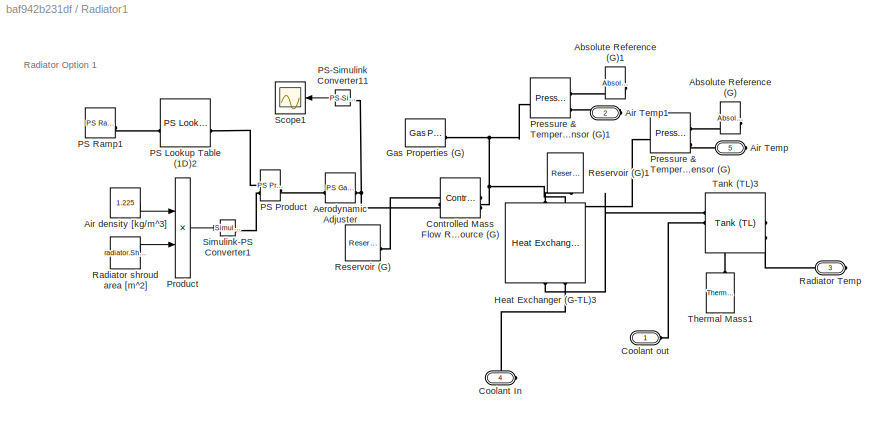
BLOCK [SubSystem] Radiator1
BLOCK [Reference] Radiator1/Absolute Reference (G)  REF=fl_lib/Gas/Elements/Absolute Reference
(G)
  NameLocation = top
  SourceBlock = fl_lib/Gas/Elements/Absolute Reference\n(G)
  SourceType = Absolute Reference\n(G)
BLOCK [Reference] Radiator1/Absolute Reference (G)1  REF=fl_lib/Gas/Elements/Absolute Reference
(G)
  NameLocation = top
  SourceBlock = fl_lib/Gas/Elements/Absolute Reference\n(G)
  SourceType = Absolute Reference\n(G)
BLOCK [Reference] Radiator1/Aerodynamic Adjuster  REF=fl_lib/Physical Signals/Functions/PS Gain
  SourceBlock = fl_lib/Physical Signals/Functions/PS Gain
  SourceType = PS Gain
BLOCK [PMIOPort] Radiator1/Air Temp
  Port = 5
  Side = Right
BLOCK [PMIOPort] Radiator1/Air Temp1
  Port = 2
  Side = Right
BLOCK [Constant] Radiator1/Air density [kg//m^3]
  Value = 1.225
BLOCK [Reference] Radiator1/Controlled Mass Flow Rate Source (G)  REF=fl_lib/Gas/Sources/Controlled Mass Flow
Rate Source (G)
  SourceBlock = fl_lib/Gas/Sources/Controlled Mass Flow\nRate Source (G)
  SourceType = Controlled Mass Flow\nRate Source (G)
BLOCK [PMIOPort] Radiator1/Coolant In
  Port = 4
  Side = Right
BLOCK [PMIOPort] Radiator1/Coolant out
  Side = Left
BLOCK [Reference] Radiator1/Gas Properties (G)  REF=fl_lib/Gas/Utilities/Gas Properties (G)
  SourceBlock = fl_lib/Gas/Utilities/Gas Properties (G)
  SourceType = Gas Properties (G)
BLOCK [Reference] Radiator1/Heat Exchanger (G-TL)3  REF=SimscapeFluids_lib/Fluid Network
Interfaces/Heat Exchangers/Heat Exchanger
(G-TL)
  NameLocation = left
  SourceBlock = SimscapeFluids_lib/Fluid Network\nInterfaces/Heat Exchangers/Heat Exchanger\n(G-TL)
  SourceType = Heat Exchanger\n(G-TL)
BLOCK [Reference] Radiator1/PS Lookup Table (1D)2  REF=fl_lib/Physical Signals/Lookup Tables/PS Lookup Table (1D)
  SourceBlock = fl_lib/Physical Signals/Lookup Tables/PS Lookup Table (1D)
  SourceType = PS Lookup Table (1D)
BLOCK [Reference] Radiator1/PS Product  REF=fl_lib/Physical Signals/Functions/PS Product
  SourceBlock = fl_lib/Physical Signals/Functions/PS Product
  SourceType = PS Product
BLOCK [Reference] Radiator1/PS Ramp1  REF=fl_lib/Physical Signals/Sources/PS Ramp
  SourceBlock = fl_lib/Physical Signals/Sources/PS Ramp
  SourceType = PS Ramp
BLOCK [Reference] Radiator1/PS-Simulink Converter11  REF=nesl_utility/PS-Simulink
Converter
  NameLocation = top
  SourceBlock = nesl_utility/PS-Simulink\nConverter
  SourceType = PS-Simulink\nConverter
BLOCK [Reference] Radiator1/Pressure & Temperature Sensor (G)  REF=fl_lib/Gas/Sensors/Pressure &
Temperature Sensor
(G)
  SourceBlock = fl_lib/Gas/Sensors/Pressure &\nTemperature Sensor\n(G)
  SourceType = Pressure &\nTemperature Sensor\n(G)
BLOCK [Reference] Radiator1/Pressure & Temperature Sensor (G)1  REF=fl_lib/Gas/Sensors/Pressure &
Temperature Sensor
(G)
  SourceBlock = fl_lib/Gas/Sensors/Pressure &\nTemperature Sensor\n(G)
  SourceType = Pressure &\nTemperature Sensor\n(G)
BLOCK [Product] Radiator1/Product
BLOCK [PMIOPort] Radiator1/Radiator Temp
  Port = 3
  Side = Right
BLOCK [Constant] Radiator1/Radiator shroud area [m^2]
  Value = radiator.ShroudArea
BLOCK [Reference] Radiator1/Reservoir (G)  REF=fl_lib/Gas/Elements/Reservoir (G)
  SourceBlock = fl_lib/Gas/Elements/Reservoir (G)
  SourceType = Reservoir (G)
BLOCK [Reference] Radiator1/Reservoir (G)1  REF=fl_lib/Gas/Elements/Reservoir (G)
  NameLocation = left
  SourceBlock = fl_lib/Gas/Elements/Reservoir (G)
  SourceType = Reservoir (G)
BLOCK [Scope] Radiator1/Scope1
  Floating = off
  NameLocation = top
  NumInputPorts = 1
  ScopeSpecificationString = Simulink.scopes.TimeScopeBlockCfg('CurrentConfiguration', extmgr.ConfigurationSet(extmgr.Configuration('Core','General UI',true),extmgr.Configuration('Core','Source UI',true),extmgr.Configuration('Sources','WiredSimulink',true,'DataLoggingVariableName','ScopeData1'),extmgr.Configuration('Visuals','Time Domain',true,'SerializedDisplays',{struct('MinYLimReal','-0.06456','MaxYLimReal','0.6803','YLabe...<+1433ch>
BLOCK [Reference] Radiator1/Simulink-PS Converter1  REF=nesl_utility/Simulink-PS
Converter
  SourceBlock = nesl_utility/Simulink-PS\nConverter
  SourceType = Simulink-PS\nConverter
BLOCK [Reference] Radiator1/Tank (TL)3  REF=SimscapeFluids_lib/Thermal Liquid/Tanks & Accumulators/Tank (TL)
  SourceBlock = SimscapeFluids_lib/Thermal Liquid/Tanks & Accumulators/Tank (TL)
  SourceType = Tank (TL)
BLOCK [Reference] Radiator1/Thermal Mass1  REF=fl_lib/Thermal/Thermal Elements/Thermal Mass
  Commented = on
  NameLocation = right
  SourceBlock = fl_lib/Thermal/Thermal Elements/Thermal Mass
  SourceType = Thermal Mass
BLOCK [Reference] Rear Motor Inlet and Outlet Tube 1  REF=fl_lib/Thermal Liquid/Elements/Pipe (TL)
  NameLocation = top
  SourceBlock = fl_lib/Thermal Liquid/Elements/Pipe (TL)
  SourceType = Pipe (TL)
BLOCK [Reference] Rear Motor Inlet and Outlet Tube 2  REF=fl_lib/Thermal Liquid/Elements/Pipe (TL)
  NameLocation = top
  SourceBlock = fl_lib/Thermal Liquid/Elements/Pipe (TL)
  SourceType = Pipe (TL)
BLOCK [Reference] Rear Motors to Radiator Tube  REF=fl_lib/Thermal Liquid/Elements/Pipe (TL)
  NameLocation = right
  SourceBlock = fl_lib/Thermal Liquid/Elements/Pipe (TL)
  SourceType = Pipe (TL)
BLOCK [Bias] Sim Coolant Temp After MCU
  Bias = -273
  Commented = on
  SaturateOnIntegerOverflow = off
BLOCK [Bias] Sim Coolant Temp After MCU1
  Bias = -273
  Commented = on
  SaturateOnIntegerOverflow = off
BLOCK [Bias] Sim Coolant Temp After Motor Front
  Bias = -273
  Commented = on
  SaturateOnIntegerOverflow = off
BLOCK [Bias] Sim Coolant Temp After Motor Front1
  Bias = -273
  Commented = on
  SaturateOnIntegerOverflow = off
BLOCK [Bias] Sim Coolant Temp After Motor Rear
  Bias = -273
  Commented = on
  SaturateOnIntegerOverflow = off
BLOCK [Bias] Sim Coolant Temp After Motor Rear1
  Bias = -273
  Commented = on
  SaturateOnIntegerOverflow = off
BLOCK [Bias] Sim Coolant Temp After Radiator
  Bias = -273
  Commented = on
  SaturateOnIntegerOverflow = off
BLOCK [Bias] Sim Coolant Temp After Radiator1
  Bias = -273
  SaturateOnIntegerOverflow = off
BLOCK [Reference] Solver Configuration1  REF=nesl_utility/Solver
Configuration
  NameLocation = top
  SourceBlock = nesl_utility/Solver\nConfiguration
  SourceType = Solver\nConfiguration
BLOCK [Reference] Solver Configuration3  REF=nesl_utility/Solver
Configuration
  NameLocation = top
  SourceBlock = nesl_utility/Solver\nConfiguration
  SourceType = Solver\nConfiguration
BLOCK [Reference] Thermal Liquid Properties (TL)1  REF=SimscapeFluids_lib/Thermal Liquid/Utilities/Thermal Liquid
Properties (TL)
  SourceBlock = SimscapeFluids_lib/Thermal Liquid/Utilities/Thermal Liquid\nProperties (TL)
  SourceType = Thermal Liquid\nProperties (TL)
BLOCK [Reference] Thermal Liquid Properties (TL)2  REF=SimscapeFluids_lib/Thermal Liquid/Utilities/Thermal Liquid
Properties (TL)
  SourceBlock = SimscapeFluids_lib/Thermal Liquid/Utilities/Thermal Liquid\nProperties (TL)
  SourceType = Thermal Liquid\nProperties (TL)
BLOCK [ToWorkspace] To Workspace
  FixptAsFi = on
  MaxDataPoints = inf
  SampleTime = -1
  SaveFormat = Timeseries
  VariableName = componentTemps
BLOCK [ToWorkspace] To Workspace1
  FixptAsFi = on
  MaxDataPoints = inf
  SampleTime = -1
  SaveFormat = Timeseries
  VariableName = accHeatDis
ANNOTATION Accumulator: Baseplate Convection Thermal Resistance Model
ANNOTATION Accumulator: Current Signal
ANNOTATION MCU: MCU
ANNOTATION MCU1: MCU
ANNOTATION Motor + Jacket: Motor
ANNOTATION Motor + Jacket1: Motor
ANNOTATION Motor + Jacket2: Motor
ANNOTATION Motor + Jacket3: Motor
ANNOTATION Radiator: Radiator Option 1
ANNOTATION Radiator1: Radiator Option 1
LINE Acc Baseplate Temp:1 -> Goto11:1
LINE Acc Cell Tab Temp1:1 -> Mux:4
LINE Acc Cell Tab Temp:1 -> Component Temperatures Cold Loop:4
LINE Acc Cover Temp:1 -> Goto10:1
NET Acc Total Heat Dissipated to Water:1 -> Accumulator Heat Energy Scope:1, To Workspace1:1
LINE Accumulator Container Temp1:1 -> Mux:6
LINE Accumulator Container Temp:1 -> Component Temperatures Cold Loop:6
LINE Accumulator Cover Temp1:1 -> Mux:5
LINE Accumulator Cover Temp:1 -> Component Temperatures Cold Loop:5
LINE Accumulator/Acc Total Heat Generated:1 -> Accumulator/Accumulator Heat Energy:1
LINE Accumulator/Add:1 -> Accumulator/Product1:2
LINE Accumulator/C to K conversion:1 -> Accumulator/Simulink-PS Converter3:1
LINE Accumulator/Constant1:1 -> Accumulator/Product1:1
LINE Accumulator/Constant:1 -> Accumulator/Add:3
LINE Accumulator/Gain1:1 -> Accumulator/Add:1
LINE Accumulator/Gain2:1 -> Accumulator/Add:2
LINE Accumulator/Math Function1:1 -> Accumulator/Simulink-PS Converter2:1
LINE Accumulator/Math Function:1 -> Accumulator/Gain1:1
LINE Accumulator/PS-Simulink Converter12:1 -> Accumulator/Entropic Negative Heat Generation:1
LINE Accumulator/PS-Simulink Converter14:1 -> Accumulator/Acc Total Heat Generated:1
LINE Accumulator/PS-Simulink Converter15:1 -> Accumulator/Scope:1
LINE Accumulator/PS-Simulink Converter16:1 -> Accumulator/Scope2:1
LINE Accumulator/PS-Simulink Converter3:1 -> Accumulator/SOC Calculation:1
NET Accumulator/PS-Simulink Converter9:1 -> Accumulator/Gain2:1, Accumulator/Math Function:1
LINE Accumulator/Product1:1 -> Accumulator/Math Function1:1
LINE Accumulator/SOC Calculation/1//(nominal battery capacity):1 -> Accumulator/SOC Calculation/Discrete-Time Integrator:1
LINE Accumulator/SOC Calculation/Discrete-Time Integrator:1 -> Accumulator/SOC Calculation/Sum2:2
LINE Accumulator/SOC Calculation/I [A]:1 -> Accumulator/SOC Calculation/Multiply:1
LINE Accumulator/SOC Calculation/Initial State of Charge:1 -> Accumulator/SOC Calculation/Sum2:1
LINE Accumulator/SOC Calculation/Multiply:1 -> Accumulator/SOC Calculation/Rate Transition2:1
LINE Accumulator/SOC Calculation/Rate Transition2:1 -> Accumulator/SOC Calculation/1//(nominal battery capacity):1
LINE Accumulator/SOC Calculation/Sum2:1 -> Accumulator/SOC Calculation/SOC [0,1]:1
NET Accumulator/SOC Calculation:1 -> Accumulator/SOC:1, Accumulator/Simulink-PS Converter:1
LINE Accumulator:1 -> Accumulator Heat Energy Scope:2
LINE Cell Base Temp:1 -> Goto9:1
LINE Cell Tab Temp:1 -> Goto8:1
LINE Cold Radiator Air Exit Temp:1 -> Goto15:1
LINE Cold Temp Before Rad:1 -> Goto16:1
LINE From10:1 -> Mux:2
LINE From11:1 -> Mux:1
LINE From12:1 -> Mux:3
LINE From13:1 -> Mux:8
LINE From14:1 -> Mux:9
LINE From15:1 -> Mux:7
LINE From16:1 -> Component Temperatures Hot Loop:4
LINE From17:1 -> Mux:10
LINE From18:1 -> Mux:11
LINE From19:1 -> Component Temperatures Cold Loop:7
LINE From1:1 -> Component Temperatures Hot Loop:3
LINE From20:1 -> Component Temperatures Cold Loop:8
LINE From2:1 -> Component Temperatures Cold Loop:2
LINE From3:1 -> Component Temperatures Hot Loop:1
LINE From4:1 -> Mass Flow Rates:1
LINE From5:1 -> Component Temperatures Cold Loop:1
LINE From6:1 -> Component Temperatures Cold Loop:3
LINE From9:1 -> Mass Flow Rates:2
LINE From:1 -> Component Temperatures Hot Loop:2
LINE Gain1:1 -> Goto12:1
LINE Gain:1 -> Goto13:1
LINE Hot Radiator Air Exit Temp:1 -> Goto14:1
LINE MCU Front Temp:1 -> Goto6:1
LINE MCU Rear Temp:1 -> Goto2:1
LINE Motor Front Left Temp:1 -> Goto1:1
LINE Motor Front Right Temp:1 -> Goto5:1
LINE Motor Rear Left Temp:1 -> Goto:1
LINE Motor Rear Right Temp:1 -> Goto4:1
LINE Mux:1 -> To Workspace:1
LINE PS-Simulink Converter10:1 -> Acc Total Heat Dissipated to Water:1
LINE PS-Simulink Converter11:1 -> Sim Coolant Temp After Radiator1:1
LINE PS-Simulink Converter12:1 -> Sim Coolant Temp After Motor Rear1:1
LINE PS-Simulink Converter13:1 -> Cold Radiator Air Exit Temp:1
LINE PS-Simulink Converter14:1 -> Cold Temp Before Rad:1
LINE PS-Simulink Converter1:1 -> Radiator Hot Temp:1
LINE PS-Simulink Converter2:1 -> Gain:1
LINE PS-Simulink Converter31:1 -> Sim Coolant Temp After Motor Front:1
LINE PS-Simulink Converter3:1 -> Radiator Cold Loop Temp:1
LINE PS-Simulink Converter4:1 -> Gain1:1
LINE PS-Simulink Converter5:1 -> Sim Coolant Temp After MCU:1
LINE PS-Simulink Converter6:1 -> Sim Coolant Temp After Radiator:1
LINE PS-Simulink Converter7:1 -> Sim Coolant Temp After Motor Front1:1
LINE PS-Simulink Converter8:1 -> Sim Coolant Temp After Motor Rear:1
LINE PS-Simulink Converter9:1 -> Sim Coolant Temp After MCU1:1
LINE PS-Simulink Converter:1 -> Hot Radiator Air Exit Temp:1
LINE Pump Subsystem/Pressure Drop Across Pump:1 -> Pump Subsystem/Pressure:1
LINE Pump Subsystem1/Pressure Drop Across Pump:1 -> Pump Subsystem1/Pressure:1
LINE Pump Subsystem1:1 -> Pressure Gain Across Pump1:1
LINE Pump Subsystem:1 -> Pressure Gain Across Pump:1
LINE Radiator Cold Loop Temp:1 -> Goto7:1
LINE Radiator Hot Temp:1 -> Goto3:1
LINE Radiator/Air density [kg//m^3]:1 -> Radiator/Product:1
LINE Radiator/PS-Simulink Converter11:1 -> Radiator/Scope1:1
LINE Radiator/Product:1 -> Radiator/Simulink-PS Converter1:1
LINE Radiator/Radiator shroud area [m^2]:1 -> Radiator/Product:2
LINE Radiator1/Air density [kg//m^3]:1 -> Radiator1/Product:1
LINE Radiator1/PS-Simulink Converter11:1 -> Radiator1/Scope1:1
LINE Radiator1/Product:1 -> Radiator1/Simulink-PS Converter1:1
LINE Radiator1/Radiator shroud area [m^2]:1 -> Radiator1/Product:2
PLINE ACCUMULATOR WATER CHANNELS1:LConn1 -- Pipe (TL)8:RConn1
PNET net1: ACCUMULATOR WATER CHANNELS1:LConn2 -- ACCUMULATOR WATER CHANNELS:LConn2 -- Heat Flow Rate Sensor6:RConn2
PNET net2: ACCUMULATOR WATER CHANNELS1:RConn1 -- MCU1:RConn2 -- MCU:RConn2 -- Pressure & Temperature Sensor (TL)5:LConn1
PLINE ACCUMULATOR WATER CHANNELS:LConn1 -- Pipe (TL)5:RConn1
PLINE ACCUMULATOR WATER CHANNELS:RConn1 -- Pipe (TL)8:LConn1
PLINE Absolute Reference (TL)10:LConn1 -- Pressure & Temperature Sensor (TL)20:RConn1
PLINE Absolute Reference (TL)1:LConn1 -- Pressure & Temperature Sensor (TL)3:RConn1
PLINE Absolute Reference (TL)2:LConn1 -- Pressure & Temperature Sensor (TL)4:RConn1
PLINE Absolute Reference (TL)3:LConn1 -- Pressure & Temperature Sensor (TL)2:RConn1
PLINE Absolute Reference (TL)4:LConn1 -- Pressure & Temperature Sensor (TL)6:RConn1
PLINE Absolute Reference (TL)5:LConn1 -- Pressure & Temperature Sensor (TL)5:RConn1
PLINE Absolute Reference (TL)6:LConn1 -- Pressure & Temperature Sensor (TL)1:RConn1
PLINE Absolute Reference (TL)7:LConn1 -- Pressure & Temperature Sensor (TL)7:RConn1
PLINE Acc Baseplate Temp:LConn1 -- Accumulator:RConn4
PLINE Acc Cover Temp:LConn1 -- Accumulator:RConn3
PNET net3: Accumulator/ Fin1:LConn1 -- Accumulator/Cell :LConn1 -- Accumulator/Cell Tab Resistance:RConn1 -- Accumulator/Cell Temperature Sensor:LConn1 -- Accumulator/Heat Flow Rate Sensor4:RConn2 -- Accumulator/segment to container resistance:LConn1 -- Accumulator/segment to cover resistance:LConn1
PLINE Accumulator/Ambient Air1:LConn1 -- Accumulator/Heat Flow Rate Sensor5:RConn2
PLINE Accumulator/Ambient Air:LConn1 -- Accumulator/Variable Thermal Resistance:RConn1
PLINE Accumulator/Cell Internal Resistance:LConn1 -- Accumulator/Heat Flow Rate Sensor4:LConn1
PLINE Accumulator/Cell Internal Resistance:RConn1 -- Accumulator/PS Subtract:RConn1
PLINE Accumulator/Cell Internal Resistance:RConn2 -- Accumulator/Thermal Reference4:LConn1
PNET net4: Accumulator/Cell Tab Resistance:LConn1 -- Accumulator/Cell tab:LConn1 -- Accumulator/Convective Heat Transfer1:LConn1 -- Accumulator/Heat Flow Rate Sensor3:RConn2 -- Accumulator/Interconnect Tab:LConn1 -- Accumulator/Thermal Resistance:LConn1
PNET net5: Accumulator/Cell Tab Temp Sensor:LConn1 -- Accumulator/Interconnect Bolt:LConn1 -- Accumulator/Interconnect Nut:LConn1 -- Accumulator/Thermal Resistance:RConn1
PLINE Accumulator/Cell Tab Temp Sensor:RConn1 -- Accumulator/ReferenceTemp3:LConn1
PLINE Accumulator/Cell Tab Temp Sensor:RConn2 -- Accumulator/Conn2:RConn1
PLINE Accumulator/Cell Temp (K):LConn1 -- Accumulator/Simulink-PS Converter3:RConn1
PNET net6: Accumulator/Cell Temp (K):LConn2 -- Accumulator/Cell Temperature Sensor:RConn2 -- Accumulator/Conn3:RConn1 -- Accumulator/IR vs Temperature Lookup:LConn1
PLINE Accumulator/Cell Temp (K):RConn1 -- Accumulator/PS Product1:LConn2
PLINE Accumulator/Cell Temperature Sensor:RConn1 -- Accumulator/Reference Temp2:LConn1
PNET net7: Accumulator/Conn1:RConn1 -- Accumulator/Cover Temp Sensor:LConn1 -- Accumulator/Cover:LConn1 -- Accumulator/segment to cover resistance:RConn1
PLINE Accumulator/Conn4:RConn1 -- Accumulator/Cover Temp Sensor:RConn2
PLINE Accumulator/Conn5:RConn1 -- Accumulator/Container Temp Sensor:RConn2
PNET net8: Accumulator/Container Temp Sensor:LConn1 -- Accumulator/Container:LConn1 -- Accumulator/Variable Thermal Resistance:LConn1 -- Accumulator/segment to container resistance:RConn1
PLINE Accumulator/Container Temp Sensor:RConn1 -- Accumulator/Reference Temp:LConn1
PLINE Accumulator/Controlled Current Source1:LConn1 -- Accumulator/Power Sensor1:LConn1
PNET net9: Accumulator/Controlled Current Source1:RConn1 -- Accumulator/Controlled Current Source:RConn1 -- Accumulator/Current Lookup:RConn1 -- Accumulator/PS Product2:LConn1 -- Accumulator/PS-Simulink Converter16:LConn1 -- Accumulator/PS-Simulink Converter3:LConn1
PNET net10: Accumulator/Controlled Current Source1:RConn2 -- Accumulator/Electrical Reference1:LConn1 -- Accumulator/Power Sensor1:LConn3 -- Accumulator/Tab Resistance:RConn1
PLINE Accumulator/Controlled Current Source:LConn1 -- Accumulator/Power Sensor:LConn1
PNET net11: Accumulator/Controlled Current Source:RConn2 -- Accumulator/Electrical Reference:LConn1 -- Accumulator/Power Sensor:LConn3 -- Accumulator/Variable Resistor:RConn1
PLINE Accumulator/Convective Heat Transfer1:RConn1 -- Accumulator/Heat Flow Rate Sensor5:LConn1
PLINE Accumulator/Cover Temp Sensor:RConn1 -- Accumulator/Reference Temp1:LConn1
PLINE Accumulator/Current Lookup:LConn1 -- Accumulator/PS Counter1:RConn1
PLINE Accumulator/Heat Flow Rate Sensor3:LConn1 -- Accumulator/Interconnect Resistance:LConn1
PLINE Accumulator/Heat Flow Rate Sensor3:RConn1 -- Accumulator/PS Add:LConn2
PLINE Accumulator/Heat Flow Rate Sensor4:RConn1 -- Accumulator/PS Add:LConn1
PLINE Accumulator/Heat Flow Rate Sensor5:RConn1 -- Accumulator/PS-Simulink Converter15:LConn1
PLINE Accumulator/IR vs Temperature Lookup:RConn1 -- Accumulator/Variable Resistor:LConn1
PLINE Accumulator/Interconnect Resistance:RConn1 -- Accumulator/Power Sensor1:RConn1
PLINE Accumulator/Interconnect Resistance:RConn2 -- Accumulator/Thermal Reference3:LConn1
PLINE Accumulator/Motor Speed:LConn1 -- Accumulator/PS Counter:RConn1
PNET net12: Accumulator/Motor Speed:RConn1 -- Accumulator/PS-Simulink Converter9:LConn1 -- Accumulator/Solver:RConn1
PLINE Accumulator/PS Add:RConn1 -- Accumulator/PS-Simulink Converter14:LConn1
PLINE Accumulator/PS Product1:LConn1 -- Accumulator/dOCVdT vs SOC:RConn1
PLINE Accumulator/PS Product1:RConn1 -- Accumulator/PS Product2:LConn2
PNET net13: Accumulator/PS Product2:RConn1 -- Accumulator/PS Subtract:LConn2 -- Accumulator/PS-Simulink Converter12:LConn1
PLINE Accumulator/PS Subtract:LConn1 -- Accumulator/Power Sensor:RConn1
PLINE Accumulator/Power Sensor1:LConn2 -- Accumulator/Tab Resistance:LConn1
PLINE Accumulator/Power Sensor:LConn2 -- Accumulator/Variable Resistor:LConn2
PLINE Accumulator/Simulink-PS Converter2:RConn1 -- Accumulator/Variable Thermal Resistance:LConn2
PLINE Accumulator/Simulink-PS Converter:RConn1 -- Accumulator/dOCVdT vs SOC:LConn1
PLINE Accumulator:LConn1 -- Heat Flow Rate Sensor6:LConn1
PLINE Accumulator:RConn1 -- Cell Tab Temp:LConn1
PLINE Accumulator:RConn2 -- Cell Base Temp:LConn1
PNET net14: Front Motor Inlet and Outlet Tube 1:LConn1 -- Motor + Jacket1:LConn2 -- Pump to Rear Motors Tube:RConn1
PLINE Front Motor Inlet and Outlet Tube 1:LConn2 -- Perfect Insulator9:LConn1
PLINE Front Motor Inlet and Outlet Tube 1:RConn1 -- Motor + Jacket3:LConn2
PNET net15: Front Motor Inlet and Outlet Tube 2:LConn1 -- Front to Rear Tube:LConn1 -- Motor + Jacket3:LConn1
PLINE Front Motor Inlet and Outlet Tube 2:LConn2 -- Perfect Insulator10:LConn1
PLINE Front Motor Inlet and Outlet Tube 2:RConn1 -- Motor + Jacket1:LConn1
PLINE Front to Rear Tube:LConn2 -- Perfect Insulator11:LConn1
PNET net16: Front to Rear Tube:RConn1 -- Rear Motor Inlet and Outlet Tube 1:LConn1 -- Rear Motor Inlet and Outlet Tube 2:LConn1
PLINE Heat Flow Rate Sensor6:RConn1 -- PS-Simulink Converter10:LConn1
PLINE MCU Front Temp:LConn1 -- MCU1:LConn2
PLINE MCU Rear Temp:LConn1 -- MCU:LConn2
PNET net17: MCU/Controlled Heat Flow Rate Source1:LConn1 -- MCU/MCU COLD PLATE:LConn2 -- MCU/Temperature Sensor:LConn1 -- MCU/Thermal Mass:LConn1
PLINE MCU/Controlled Heat Flow Rate Source1:RConn1 -- MCU/Heat Gen Signal:RConn1
PLINE MCU/Controlled Heat Flow Rate Source1:RConn2 -- MCU/Thermal Reference1:LConn1
PLINE MCU/Coolant In:RConn1 -- MCU/MCU COLD PLATE:LConn1
PLINE MCU/Coolant Out:RConn1 -- MCU/MCU COLD PLATE:RConn1
PLINE MCU/MCU Temperature:RConn1 -- MCU/Temperature Sensor:RConn2
PLINE MCU/Temperature Sensor:RConn1 -- MCU/Temperature Source:LConn1
PNET net18: MCU1/Controlled Heat Flow Rate Source1:LConn1 -- MCU1/MCU COLD PLATE:LConn2 -- MCU1/Temperature Sensor:LConn1 -- MCU1/Thermal Mass:LConn1
PLINE MCU1/Controlled Heat Flow Rate Source1:RConn1 -- MCU1/Heat Gen Signal:RConn1
PLINE MCU1/Controlled Heat Flow Rate Source1:RConn2 -- MCU1/Thermal Reference1:LConn1
PLINE MCU1/Coolant In:RConn1 -- MCU1/MCU COLD PLATE:LConn1
PLINE MCU1/Coolant Out:RConn1 -- MCU1/MCU COLD PLATE:RConn1
PLINE MCU1/MCU Temperature:RConn1 -- MCU1/Temperature Sensor:RConn2
PLINE MCU1/Temperature Sensor:RConn1 -- MCU1/Temperature Source:LConn1
PLINE MCU1:LConn1 -- PS Gain4:RConn1
PLINE MCU1:RConn1 -- Pipe (TL)6:LConn1
PLINE MCU:LConn1 -- PS Gain1:RConn1
PNET net19: MCU:RConn1 -- Pipe (TL)3:LConn1 -- Pressure & Temperature Sensor (TL)4:LConn1
PLINE Motor + Jacket/Controlled Heat Flow Rate Source:LConn1 -- Motor + Jacket/Heat Flow Rate Sensor:LConn1
PLINE Motor + Jacket/Controlled Heat Flow Rate Source:RConn1 -- Motor + Jacket/HeatGen Signal:RConn1
PLINE Motor + Jacket/Controlled Heat Flow Rate Source:RConn2 -- Motor + Jacket/Thermal Reference:LConn1
PLINE Motor + Jacket/Coolant In:RConn1 -- Motor + Jacket/MOTOR COOLER:LConn1
PLINE Motor + Jacket/Coolant Out:RConn1 -- Motor + Jacket/MOTOR COOLER:RConn1
PLINE Motor + Jacket/Cumulative Heat Gen:RConn1 -- Motor + Jacket/Heat Flow Rate Sensor:RConn1
PNET net20: Motor + Jacket/Heat Flow Rate Sensor:RConn2 -- Motor + Jacket/MOTOR COOLER:LConn2 -- Motor + Jacket/Motor Temperature Sensor:LConn1 -- Motor + Jacket/Motor Thermal Mass:LConn1
PLINE Motor + Jacket/Motor Temperature Sensor:RConn1 -- Motor + Jacket/Temperature Source1:LConn1
PLINE Motor + Jacket/Motor Temperature Sensor:RConn2 -- Motor + Jacket/Motor Temperature:RConn1
PLINE Motor + Jacket1/Controlled Heat Flow Rate Source:LConn1 -- Motor + Jacket1/Heat Flow Rate Sensor:LConn1
PLINE Motor + Jacket1/Controlled Heat Flow Rate Source:RConn1 -- Motor + Jacket1/HeatGen Signal:RConn1
PLINE Motor + Jacket1/Controlled Heat Flow Rate Source:RConn2 -- Motor + Jacket1/Thermal Reference:LConn1
PLINE Motor + Jacket1/Coolant In:RConn1 -- Motor + Jacket1/MOTOR COOLER:LConn1
PLINE Motor + Jacket1/Coolant Out:RConn1 -- Motor + Jacket1/MOTOR COOLER:RConn1
PLINE Motor + Jacket1/Cumulative Heat Gen:RConn1 -- Motor + Jacket1/Heat Flow Rate Sensor:RConn1
PNET net21: Motor + Jacket1/Heat Flow Rate Sensor:RConn2 -- Motor + Jacket1/MOTOR COOLER:LConn2 -- Motor + Jacket1/Motor Temperature Sensor:LConn1 -- Motor + Jacket1/Motor Thermal Mass:LConn1
PLINE Motor + Jacket1/Motor Temperature Sensor:RConn1 -- Motor + Jacket1/Temperature Source1:LConn1
PLINE Motor + Jacket1/Motor Temperature Sensor:RConn2 -- Motor + Jacket1/Motor Temperature:RConn1
PLINE Motor + Jacket1:RConn1 -- PS Gain2:RConn1
PLINE Motor + Jacket1:RConn2 -- Motor Front Left Temp:LConn1
PLINE Motor + Jacket2/Controlled Heat Flow Rate Source:LConn1 -- Motor + Jacket2/Heat Flow Rate Sensor:LConn1
PLINE Motor + Jacket2/Controlled Heat Flow Rate Source:RConn1 -- Motor + Jacket2/HeatGen Signal:RConn1
PLINE Motor + Jacket2/Controlled Heat Flow Rate Source:RConn2 -- Motor + Jacket2/Thermal Reference:LConn1
PLINE Motor + Jacket2/Coolant In:RConn1 -- Motor + Jacket2/MOTOR COOLER:LConn1
PLINE Motor + Jacket2/Coolant Out:RConn1 -- Motor + Jacket2/MOTOR COOLER:RConn1
PLINE Motor + Jacket2/Cumulative Heat Gen:RConn1 -- Motor + Jacket2/Heat Flow Rate Sensor:RConn1
PNET net22: Motor + Jacket2/Heat Flow Rate Sensor:RConn2 -- Motor + Jacket2/MOTOR COOLER:LConn2 -- Motor + Jacket2/Motor Temperature Sensor:LConn1 -- Motor + Jacket2/Motor Thermal Mass:LConn1
PLINE Motor + Jacket2/Motor Temperature Sensor:RConn1 -- Motor + Jacket2/Temperature Source1:LConn1
PLINE Motor + Jacket2/Motor Temperature Sensor:RConn2 -- Motor + Jacket2/Motor Temperature:RConn1
PNET net23: Motor + Jacket2:LConn1 -- Motor + Jacket:LConn1 -- Rear Motors to Radiator Tube:LConn1
PLINE Motor + Jacket2:LConn2 -- Rear Motor Inlet and Outlet Tube 2:RConn1
PLINE Motor + Jacket2:RConn1 -- PS Gain3:RConn1
PLINE Motor + Jacket2:RConn2 -- Motor Rear Right Temp:LConn1
PLINE Motor + Jacket3/Controlled Heat Flow Rate Source:LConn1 -- Motor + Jacket3/Heat Flow Rate Sensor:LConn1
PLINE Motor + Jacket3/Controlled Heat Flow Rate Source:RConn1 -- Motor + Jacket3/HeatGen Signal:RConn1
PLINE Motor + Jacket3/Controlled Heat Flow Rate Source:RConn2 -- Motor + Jacket3/Thermal Reference:LConn1
PLINE Motor + Jacket3/Coolant In:RConn1 -- Motor + Jacket3/MOTOR COOLER1:LConn1
PLINE Motor + Jacket3/Coolant Out:RConn1 -- Motor + Jacket3/MOTOR COOLER1:RConn1
PLINE Motor + Jacket3/Cumulative Heat Gen:RConn1 -- Motor + Jacket3/Heat Flow Rate Sensor:RConn1
PNET net24: Motor + Jacket3/Heat Flow Rate Sensor:RConn2 -- Motor + Jacket3/MOTOR COOLER1:LConn2 -- Motor + Jacket3/Motor Temperature Sensor:LConn1 -- Motor + Jacket3/Motor Thermal Mass:LConn1
PLINE Motor + Jacket3/Motor Temperature Sensor:RConn1 -- Motor + Jacket3/Temperature Source1:LConn1
PLINE Motor + Jacket3/Motor Temperature Sensor:RConn2 -- Motor + Jacket3/Motor Temperature:RConn1
PLINE Motor + Jacket3:RConn1 -- PS Gain5:RConn1
PLINE Motor + Jacket3:RConn2 -- Motor Front Right Temp:LConn1
PLINE Motor + Jacket:LConn2 -- Rear Motor Inlet and Outlet Tube 1:RConn1
PLINE Motor + Jacket:RConn1 -- PS Gain:RConn1
PLINE Motor + Jacket:RConn2 -- Motor Rear Left Temp:LConn1
PLINE PS Counter1:RConn1 -- PS Lookup Table (1D)4:LConn1
PLINE PS Counter2:RConn1 -- PS Lookup Table (1D)1:LConn1
PLINE PS Counter3:RConn1 -- PS Lookup Table (1D)7:LConn1
PLINE PS Counter4:RConn1 -- PS Lookup Table (1D):LConn1
PLINE PS Counter:RConn1 -- PS Lookup Table (1D)3:LConn1
PLINE PS Gain1:LConn1 -- PS Lookup Table (1D)1:RConn1
PLINE PS Gain2:LConn1 -- PS Lookup Table (1D)7:RConn1
PLINE PS Gain3:LConn1 -- PS Lookup Table (1D)2:RConn1
PLINE PS Gain4:LConn1 -- PS Lookup Table (1D)3:RConn1
PLINE PS Gain5:LConn1 -- PS Lookup Table (1D)4:RConn1
PLINE PS Gain:LConn1 -- PS Lookup Table (1D):RConn1
PLINE PS Lookup Table (1D)2:LConn1 -- PS Ramp1:RConn1
PLINE PS-Simulink Converter11:LConn1 -- Pressure & Temperature Sensor (TL)1:RConn3
PLINE PS-Simulink Converter12:LConn1 -- Pressure & Temperature Sensor (TL)7:RConn3
PLINE PS-Simulink Converter13:LConn1 -- Radiator1:RConn4
PLINE PS-Simulink Converter14:LConn1 -- Radiator1:RConn1
PLINE PS-Simulink Converter1:LConn1 -- Radiator:RConn1
PLINE PS-Simulink Converter2:LConn1 -- Pump Subsystem:RConn1
PLINE PS-Simulink Converter31:LConn1 -- Pressure & Temperature Sensor (TL)20:RConn3
PLINE PS-Simulink Converter3:LConn1 -- Radiator1:RConn2
PLINE PS-Simulink Converter4:LConn1 -- Pump Subsystem1:RConn1
PLINE PS-Simulink Converter5:LConn1 -- Pressure & Temperature Sensor (TL)4:RConn3
PLINE PS-Simulink Converter6:LConn1 -- Pressure & Temperature Sensor (TL)2:RConn3
PLINE PS-Simulink Converter7:LConn1 -- Pressure & Temperature Sensor (TL)3:RConn3
PLINE PS-Simulink Converter8:LConn1 -- Pressure & Temperature Sensor (TL)6:RConn3
PLINE PS-Simulink Converter9:LConn1 -- Pressure & Temperature Sensor (TL)5:RConn3
PLINE PS-Simulink Converter:LConn1 -- Radiator:RConn3
PLINE Perfect Insulator12:LConn1 -- Rear Motor Inlet and Outlet Tube 2:LConn2
PLINE Perfect Insulator13:LConn1 -- Rear Motor Inlet and Outlet Tube 1:LConn2
PLINE Perfect Insulator1:LConn1 -- Pipe (TL)3:LConn2
PLINE Perfect Insulator2:LConn1 -- Rear Motors to Radiator Tube:LConn2
PLINE Perfect Insulator3:LConn1 -- Pipe (TL)2:LConn2
PLINE Perfect Insulator4:LConn1 -- Pipe (TL)6:LConn2
PLINE Perfect Insulator5:LConn1 -- Pipe (TL)5:LConn2
PLINE Perfect Insulator6:LConn1 -- Pipe (TL)7:LConn2
PLINE Perfect Insulator7:LConn1 -- Pipe (TL)8:LConn2
PLINE Perfect Insulator8:LConn1 -- Pump to Rear Motors Tube:LConn2
PLINE Perfect Insulator:LConn1 -- Pipe (TL)1:LConn2
PLINE Pipe (TL)1:LConn1 -- Radiator:LConn1
PNET net25: Pipe (TL)1:RConn1 -- Pressure & Temperature Sensor (TL)2:LConn1 -- Pump Subsystem:LConn1 -- Solver Configuration1:RConn1 -- Thermal Liquid Properties (TL)2:RConn1
PLINE Pipe (TL)2:LConn1 -- Radiator1:LConn1
PNET net26: Pipe (TL)2:RConn1 -- Pressure & Temperature Sensor (TL)1:LConn1 -- Pump Subsystem1:LConn1
PNET net27: Pipe (TL)3:RConn1 -- Pipe (TL)6:RConn1 -- Pipe (TL)7:LConn1
PNET net28: Pipe (TL)5:LConn1 -- Pump Subsystem1:LConn2 -- Solver Configuration3:RConn1 -- Thermal Liquid Properties (TL)1:RConn1
PLINE Pipe (TL)7:RConn1 -- Radiator1:RConn3
PNET net29: Pump Subsystem/Centrifugal Pump (TL):LConn1 -- Pump Subsystem/Pressure & Temperature Sensor (TL)5:RConn1 -- Pump Subsystem/Pump Inlet:RConn1
PLINE Pump Subsystem/Centrifugal Pump (TL):LConn2 -- Pump Subsystem/Mass & Energy Flow Rate Sensor (TL):LConn1
PLINE Pump Subsystem/Centrifugal Pump (TL):RConn1 -- Pump Subsystem/Ideal Angular Velocity Source:LConn1
PNET net30: Pump Subsystem/Centrifugal Pump (TL):RConn2 -- Pump Subsystem/Ideal Angular Velocity Source:RConn2 -- Pump Subsystem/Mechanical Rotational Reference:LConn1
PLINE Pump Subsystem/Ideal Angular Velocity Source:RConn1 -- Pump Subsystem/PS Constant:RConn1
PNET net31: Pump Subsystem/Mass & Energy Flow Rate Sensor (TL):RConn1 -- Pump Subsystem/Pressure & Temperature Sensor (TL)5:LConn1 -- Pump Subsystem/Pump Outlet:RConn1
PLINE Pump Subsystem/Mass & Energy Flow Rate Sensor (TL):RConn2 -- Pump Subsystem/Mass Flow Rate:RConn1
PLINE Pump Subsystem/Pressure & Temperature Sensor (TL)5:RConn2 -- Pump Subsystem/Pressure Drop Across Pump:LConn1
PNET net32: Pump Subsystem1/Centrifugal Pump (TL):LConn1 -- Pump Subsystem1/Pressure & Temperature Sensor (TL)5:RConn1 -- Pump Subsystem1/Pump Inlet:RConn1
PLINE Pump Subsystem1/Centrifugal Pump (TL):LConn2 -- Pump Subsystem1/Mass & Energy Flow Rate Sensor (TL):LConn1
PLINE Pump Subsystem1/Centrifugal Pump (TL):RConn1 -- Pump Subsystem1/Ideal Angular Velocity Source:LConn1
PNET net33: Pump Subsystem1/Centrifugal Pump (TL):RConn2 -- Pump Subsystem1/Ideal Angular Velocity Source:RConn2 -- Pump Subsystem1/Mechanical Rotational Reference:LConn1
PLINE Pump Subsystem1/Ideal Angular Velocity Source:RConn1 -- Pump Subsystem1/PS Constant:RConn1
PNET net34: Pump Subsystem1/Mass & Energy Flow Rate Sensor (TL):RConn1 -- Pump Subsystem1/Pressure & Temperature Sensor (TL)5:LConn1 -- Pump Subsystem1/Pump Outlet:RConn1
PLINE Pump Subsystem1/Mass & Energy Flow Rate Sensor (TL):RConn2 -- Pump Subsystem1/Mass Flow Rate:RConn1
PLINE Pump Subsystem1/Pressure & Temperature Sensor (TL)5:RConn2 -- Pump Subsystem1/Pressure Drop Across Pump:LConn1
PLINE Pump Subsystem:LConn2 -- Pump to Rear Motors Tube:LConn1
PLINE Radiator/Absolute Reference (G):LConn1 -- Radiator/Pressure & Temperature Sensor (G):RConn1
PLINE Radiator/Aerodynamic Adjuster:LConn1 -- Radiator/PS Product:RConn1
PNET net35: Radiator/Aerodynamic Adjuster:RConn1 -- Radiator/Controlled Mass Flow Rate Source (G):LConn2 -- Radiator/PS-Simulink Converter11:LConn1
PLINE Radiator/Air Temp:RConn1 -- Radiator/Pressure & Temperature Sensor (G):RConn3
PLINE Radiator/Controlled Mass Flow Rate Source (G):LConn1 -- Radiator/Reservoir (G):LConn1
PNET net36: Radiator/Controlled Mass Flow Rate Source (G):RConn1 -- Radiator/Gas Properties (G):RConn1 -- Radiator/Heat Exchanger (G-TL)3:LConn2
PLINE Radiator/Coolant In:RConn1 -- Radiator/Heat Exchanger (G-TL)3:RConn2
PLINE Radiator/Coolant out:RConn1 -- Radiator/Tank (TL)3:LConn2
PNET net37: Radiator/Heat Exchanger (G-TL)3:LConn1 -- Radiator/Pressure & Temperature Sensor (G):LConn1 -- Radiator/Reservoir (G)1:LConn1
PLINE Radiator/Heat Exchanger (G-TL)3:RConn1 -- Radiator/Tank (TL)3:LConn1
PLINE Radiator/PS Lookup Table (1D)2:LConn1 -- Radiator/PS Ramp1:RConn1
PLINE Radiator/PS Lookup Table (1D)2:RConn1 -- Radiator/PS Product:LConn1
PLINE Radiator/PS Product:LConn2 -- Radiator/Simulink-PS Converter1:RConn1
PLINE Radiator/Radiator Temp:RConn1 -- Radiator/Tank (TL)3:RConn2
PLINE Radiator/Tank (TL)3:RConn1 -- Radiator/Thermal Mass1:LConn1
PLINE Radiator1/Absolute Reference (G)1:LConn1 -- Radiator1/Pressure & Temperature Sensor (G)1:RConn1
PLINE Radiator1/Absolute Reference (G):LConn1 -- Radiator1/Pressure & Temperature Sensor (G):RConn1
PLINE Radiator1/Aerodynamic Adjuster:LConn1 -- Radiator1/PS Product:RConn1
PNET net38: Radiator1/Aerodynamic Adjuster:RConn1 -- Radiator1/Controlled Mass Flow Rate Source (G):LConn2 -- Radiator1/PS-Simulink Converter11:LConn1
PLINE Radiator1/Air Temp1:RConn1 -- Radiator1/Pressure & Temperature Sensor (G)1:RConn3
PLINE Radiator1/Air Temp:RConn1 -- Radiator1/Pressure & Temperature Sensor (G):RConn3
PLINE Radiator1/Controlled Mass Flow Rate Source (G):LConn1 -- Radiator1/Reservoir (G):LConn1
PNET net39: Radiator1/Controlled Mass Flow Rate Source (G):RConn1 -- Radiator1/Gas Properties (G):RConn1 -- Radiator1/Heat Exchanger (G-TL)3:LConn2 -- Radiator1/Pressure & Temperature Sensor (G)1:LConn1
PLINE Radiator1/Coolant In:RConn1 -- Radiator1/Heat Exchanger (G-TL)3:RConn2
PLINE Radiator1/Coolant out:RConn1 -- Radiator1/Tank (TL)3:LConn2
PNET net40: Radiator1/Heat Exchanger (G-TL)3:LConn1 -- Radiator1/Pressure & Temperature Sensor (G):LConn1 -- Radiator1/Reservoir (G)1:LConn1
PLINE Radiator1/Heat Exchanger (G-TL)3:RConn1 -- Radiator1/Tank (TL)3:LConn1
PLINE Radiator1/PS Lookup Table (1D)2:LConn1 -- Radiator1/PS Ramp1:RConn1
PLINE Radiator1/PS Lookup Table (1D)2:RConn1 -- Radiator1/PS Product:LConn1
PLINE Radiator1/PS Product:LConn2 -- Radiator1/Simulink-PS Converter1:RConn1
PLINE Radiator1/Radiator Temp:RConn1 -- Radiator1/Tank (TL)3:RConn2
PLINE Radiator1/Tank (TL)3:RConn1 -- Radiator1/Thermal Mass1:LConn1
PLINE Radiator:RConn2 -- Rear Motors to Radiator Tube:RConn1
note: NET lines group one-source signal fan-out (src -> all destinations, sorted); 1:1 wires keep LINE; PNET lines group multi-terminal physical nets as a canonical sorted terminal list (undirected conserving connections); 2-terminal nets keep the pairwise PLINE form
